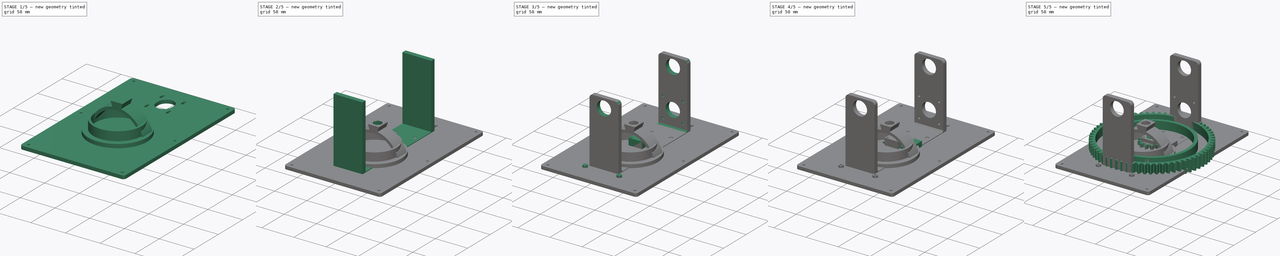
[diagram: build sequence overview — one tinted view per stage of 5, left to right]
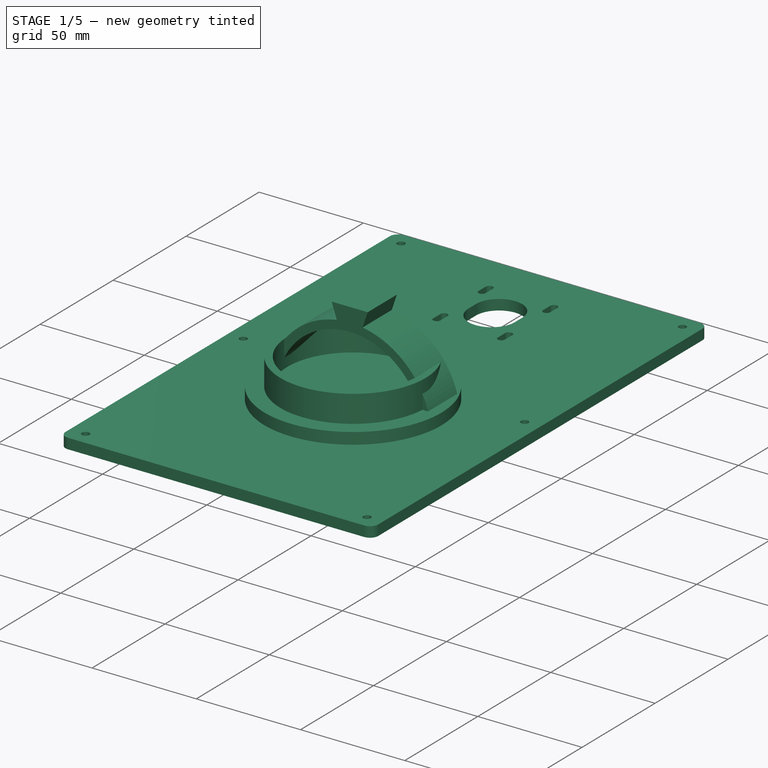
[diagram: stage 1 of 5 — iso view after this stage's code; geometry added in this stage tinted green]
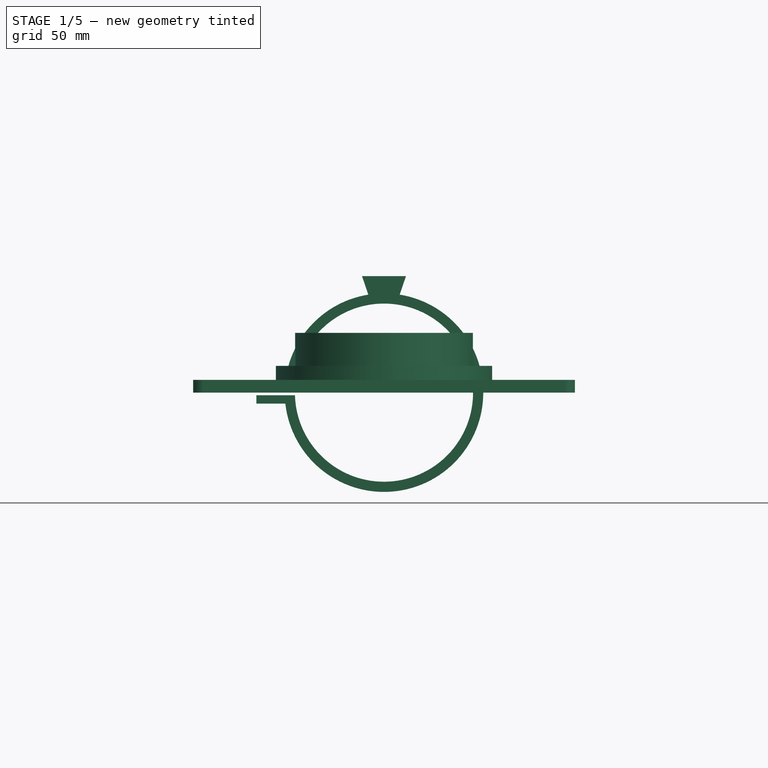
[diagram: stage 1 of 5 — front view after this stage's code; geometry added in this stage tinted green]
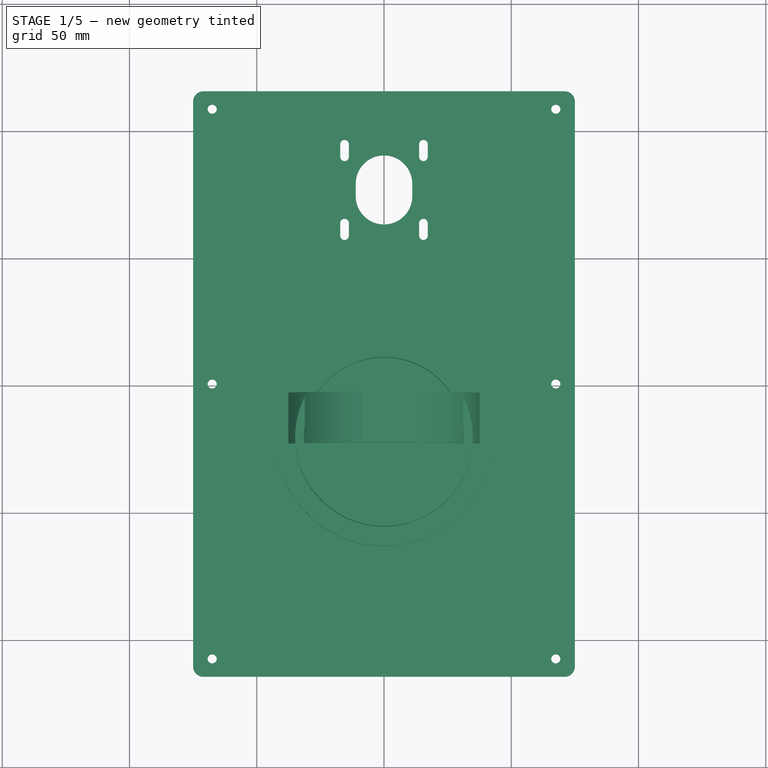
[diagram: stage 1 of 5 — top view after this stage's code; geometry added in this stage tinted green]
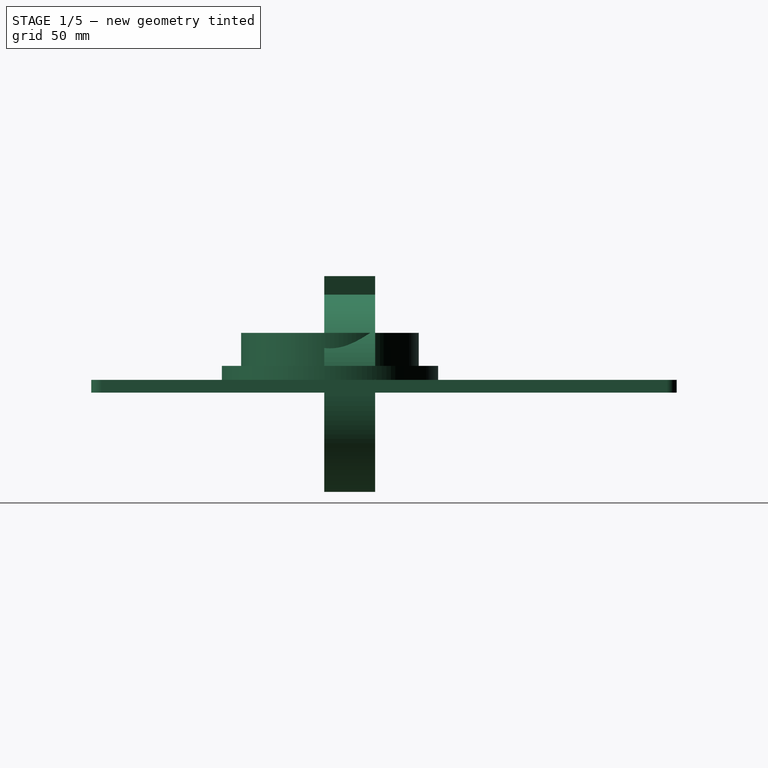
[diagram: stage 1 of 5 — right view after this stage's code; geometry added in this stage tinted green]
FCSTD DOCUMENT  (FreeCAD 0.19R21937 (Git))
Label: dslr_telescope_altaz
License: All rights reserved
LicenseURL: http://en.wikipedia.org/wiki/All_rights_reserved
objects: Sketcher::SketchObject×30, PartDesign::Pad×16, PartDesign::Pocket×16, PartDesign::Body×8, PartDesign::Fillet×3, Part::Part2DObjectPython×2, PartDesign::Plane×2, PartDesign::Chamfer×1
note: 114 computed .brp shape members not serialized (recipe doc carries the construction recipe); baked Part::Feature solids carry a one-line shape summary decoded from their .brp

FEATURE [PartDesign::Body] Body  label="Large azimuth gear"
  Group = -> [InvoluteGear,Pad,Sketch,Pocket,Sketch001,Pocket001,Sketch002,Pocket002]
  Origin = -> Origin
  Placement = pos=(0,-21,29) rot=(0,1,0;3.14159rad)
  Tip = -> Pocket002
FEATURE [Sketcher::SketchObject] Sketch003
  MapMode = 5
  expr: Constraints[84] = 31 / 2
  sketch-geometry (38):
    g0: LineSegment [constr] StartX=-67.5 StartY=108 StartZ=0 EndX=67.5 EndY=108 EndZ=0
    g1: LineSegment [constr] StartX=67.5 StartY=108 StartZ=0 EndX=67.5 EndY=-108 EndZ=0
    g2: LineSegment [constr] StartX=67.5 StartY=-108 StartZ=0 EndX=-67.5 EndY=-108 EndZ=0
    g3: LineSegment [constr] StartX=-67.5 StartY=-108 StartZ=0 EndX=-67.5 EndY=108 EndZ=0
    g4: Circle CenterX=-67.5 CenterY=108 CenterZ=0 NormalX=0 NormalY=0 NormalZ=1 AngleXU=0 Radius=1.8
    g5: Circle CenterX=67.5 CenterY=108 CenterZ=0 NormalX=0 NormalY=0 NormalZ=1 AngleXU=0 Radius=1.8
    g6: Circle CenterX=67.5 CenterY=-108 CenterZ=0 NormalX=0 NormalY=0 NormalZ=1 AngleXU=0 Radius=1.8
    g7: Circle CenterX=-67.5 CenterY=-108 CenterZ=0 NormalX=0 NormalY=0 NormalZ=1 AngleXU=0 Radius=1.8
    g8: LineSegment [constr] StartX=-15.5 StartY=94.273 StartZ=0 EndX=15.5 EndY=94.273 EndZ=0
    g9: LineSegment [constr] StartX=15.5 StartY=94.273 StartZ=0 EndX=15.5 EndY=63.273 EndZ=0
    g10: LineSegment [constr] StartX=15.5 StartY=63.273 StartZ=0 EndX=-15.5 EndY=63.273 EndZ=0
    g11: LineSegment [constr] StartX=-15.5 StartY=63.273 StartZ=0 EndX=-15.5 EndY=94.273 EndZ=0
    g12: LineSegment StartX=-75 StartY=115 StartZ=0 EndX=75 EndY=115 EndZ=0
    g13: LineSegment StartX=75 StartY=115 StartZ=0 EndX=75 EndY=-115 EndZ=0
    g14: LineSegment StartX=75 StartY=-115 StartZ=0 EndX=-75 EndY=-115 EndZ=0
    g15: LineSegment StartX=-75 StartY=-115 StartZ=0 EndX=-75 EndY=115 EndZ=0
    g16: ArcOfCircle CenterX=-15.5 CenterY=94.273 CenterZ=0 NormalX=0 NormalY=0 NormalZ=1 AngleXU=0 Radius=1.7 StartAngle=-9e-16 EndAngle=3.14159
    g17: ArcOfCircle CenterX=-15.5 CenterY=89.273 CenterZ=0 NormalX=0 NormalY=0 NormalZ=1 AngleXU=0 Radius=1.7 StartAngle=3.14159 EndAngle=6.28319
    g18: LineSegment StartX=-17.2 StartY=94.273 StartZ=0 EndX=-17.2 EndY=89.273 EndZ=0
    g19: LineSegment StartX=-13.8 StartY=94.273 StartZ=0 EndX=-13.8 EndY=89.273 EndZ=0
    g20: ArcOfCircle CenterX=15.5 CenterY=94.273 CenterZ=0 NormalX=0 NormalY=0 NormalZ=1 AngleXU=0 Radius=1.7 StartAngle=-9e-16 EndAngle=3.14159
    g21: ArcOfCircle CenterX=15.5 CenterY=89.273 CenterZ=0 NormalX=0 NormalY=0 NormalZ=1 AngleXU=0 Radius=1.7 StartAngle=3.14159 EndAngle=6.28319
    g22: LineSegment StartX=13.8 StartY=94.273 StartZ=0 EndX=13.8 EndY=89.273 EndZ=0
    g23: LineSegment StartX=17.2 StartY=94.273 StartZ=0 EndX=17.2 EndY=89.273 EndZ=0
    g24: ArcOfCircle CenterX=15.5 CenterY=63.273 CenterZ=0 NormalX=0 NormalY=0 NormalZ=1 AngleXU=0 Radius=1.7 StartAngle=2.2e-15 EndAngle=3.14159
    g25: ArcOfCircle CenterX=15.5 CenterY=58.273 CenterZ=0 NormalX=0 NormalY=0 NormalZ=1 AngleXU=0 Radius=1.7 StartAngle=3.14159 EndAngle=6.28319
    g26: LineSegment StartX=13.8 StartY=63.273 StartZ=0 EndX=13.8 EndY=58.273 EndZ=0
    g27: LineSegment StartX=17.2 StartY=63.273 StartZ=0 EndX=17.2 EndY=58.273 EndZ=0
    g28: ArcOfCircle CenterX=-15.5 CenterY=63.273 CenterZ=0 NormalX=0 NormalY=0 NormalZ=1 AngleXU=0 Radius=1.7 StartAngle=1.1e-15 EndAngle=3.14159
    g29: ArcOfCircle CenterX=-15.5 CenterY=58.273 CenterZ=0 NormalX=0 NormalY=0 NormalZ=1 AngleXU=0 Radius=1.7 StartAngle=3.14159 EndAngle=6.28319
    g30: LineSegment StartX=-17.2 StartY=63.273 StartZ=0 EndX=-17.2 EndY=58.273 EndZ=0
    g31: LineSegment StartX=-13.8 StartY=63.273 StartZ=0 EndX=-13.8 EndY=58.273 EndZ=0
    g32: ArcOfCircle CenterX=0 CenterY=78.773 CenterZ=0 NormalX=0 NormalY=0 NormalZ=1 AngleXU=0 Radius=11.1 StartAngle=4e-16 EndAngle=3.14159
    g33: ArcOfCircle CenterX=5e-16 CenterY=73.773 CenterZ=0 NormalX=0 NormalY=0 NormalZ=1 AngleXU=0 Radius=11.1 StartAngle=3.14159 EndAngle=6.28319
    g34: LineSegment StartX=-11.1 StartY=78.773 StartZ=0 EndX=-11.1 EndY=73.773 EndZ=0
    g35: LineSegment StartX=11.1 StartY=78.773 StartZ=0 EndX=11.1 EndY=73.773 EndZ=0
    g36: Circle CenterX=-67.5 CenterY=0 CenterZ=0 NormalX=0 NormalY=0 NormalZ=1 AngleXU=0 Radius=1.8
    g37: Circle CenterX=67.5 CenterY=0 CenterZ=0 NormalX=0 NormalY=0 NormalZ=1 AngleXU=0 Radius=1.8
  constraints (91):
    c: Coincident(g0,g1)
    c: Coincident(g1,g2)
    c: Coincident(g2,g3)
    c: Coincident(g3,g0)
    c: Horizontal(g0)
    c: Horizontal(g2)
    c: Vertical(g1)
    c: Vertical(g3)
    c: DistanceX(g0,g0) = 135
    c: DistanceY(g3,g3) = 216
    c: Coincident(g4,g0)
    c: Coincident(g5,g0)
    c: Coincident(g6,g1)
    c: Coincident(g7,g2)
    c: Radius(g4) = 1.8
    c: Equal(g4,g5)
    c: Equal(g4,g6)
    c: Equal(g4,g7)
    c: Coincident(g8,g9)
    c: Coincident(g9,g10)
    c: Coincident(g10,g11)
    c: Coincident(g11,g8)
    c: Horizontal(g10)
    c: Vertical(g9)
    c: Vertical(g11)
    c: Equal(g8,g9)
    c: DistanceX(g8,g8) = 31
    c: Symmetric(g0,g2,g-1)
    c: Coincident(g15,g14)
    c: Coincident(g14,g13)
    c: Coincident(g12,g15)
    c: Coincident(g13,g12)
    c: Equal(g15,g13)
    c: Equal(g12,g14)
    c: DistanceY(g15,g15) = 230
    c: DistanceX(g12,g12) = 150
    c: Symmetric(g12,g12,g-2)
    c: Symmetric(g14,g12,g-1)
    c: Tangent(g16,g19)
    c: Tangent(g16,g18)
    c: Tangent(g18,g17)
    c: Tangent(g19,g17)
    c: Vertical(g18)
    c: Equal(g16,g17)
    c: Tangent(g20,g23)
    c: Tangent(g20,g22)
    c: Tangent(g22,g21)
    c: Tangent(g23,g21)
    c: Vertical(g22)
    c: Equal(g20,g21)
    c: Tangent(g24,g27)
    c: Tangent(g24,g26)
    c: Tangent(g26,g25)
    c: Tangent(g27,g25)
    c: Vertical(g26)
    c: Equal(g24,g25)
    c: Tangent(g28,g31)
    c: Tangent(g28,g30)
    c: Tangent(g30,g29)
    c: Tangent(g31,g29)
    c: Vertical(g30)
    c: Equal(g28,g29)
    c: Equal(g28,g16)
    c: Equal(g16,g20)
    c: Equal(g20,g24)
    c: Radius(g16) = 1.7
    c: Equal(g18,g22)
    c: Equal(g22,g26)
    c: Equal(g26,g30)
    c: DistanceY(g18,g18) = 5
    c: Coincident(g8,g16)
    c: Coincident(g8,g20)
    c: Coincident(g28,g10)
    c: Coincident(g24,g9)
    c: Symmetric(g16,g20,g-2)
    c: Tangent(g32,g35)
    c: Tangent(g32,g34)
    c: Tangent(g34,g33)
    c: Tangent(g35,g33)
    c: Vertical(g34)
    c: Equal(g32,g33)
    c: Radius(g32) = 11.1
    c: Equal(g26,g35)
    c: PointOnObject(g32,g-2)
    c: DistanceY(g32,g16) = 15.5
    c: PointOnObject(g36,g3)
    c: PointOnObject(g37,g1)
    c: PointOnObject(g37,g-1)
    c: PointOnObject(g36,g-1)
    c: Equal(g36,g37)
    c: Equal(g37,g4)
FEATURE [PartDesign::Pad] Pad001
  AllowMultiFace = false
  Length = 5
  Length2 = 100
  Profile = -> Sketch003
  Type = 0
FEATURE [PartDesign::Body] Pocket043Body  label="altitude shaft mount"
  Group = -> [DatumPlane,Sketch048,Pad026,Sketch076,Pad027,Sketch075,Pocket041,Sketch077,Pocket042,Sketch078,Pocket043]
  Origin = -> Origin006
  Placement = pos=(0,-20,119) rot=(0,0,1;0rad)
  Tip = -> Pocket043
FEATURE [Sketcher::SketchObject] Sketch030
  MapMode = 5
  Placement = pos=(0,-13.5,-3e-15) rot=(1,0,0;1.5708rad)
  Support = -> [DatumPlane001]
  sketch-geometry (8):
    g0: ArcOfCircle CenterX=0 CenterY=0 CenterZ=0 NormalX=0 NormalY=0 NormalZ=1 AngleXU=0 Radius=35 StartAngle=3.17017 EndAngle=9.3962
    g1: LineSegment StartX=-50.1379 StartY=1 StartZ=0 EndX=-34.9857 EndY=1 EndZ=0
    g2: LineSegment StartX=-50.1379 StartY=1 StartZ=0 EndX=-50.1379 EndY=4.33261 EndZ=0
    g3: LineSegment StartX=-50.1379 StartY=4.33261 StartZ=0 EndX=-38.7586 EndY=4.33261 EndZ=0
    g4: ArcOfCircle CenterX=0 CenterY=0 CenterZ=0 NormalX=0 NormalY=0 NormalZ=1 AngleXU=0 Radius=39 StartAngle=3.25291 EndAngle=9.31346
    g5: LineSegment StartX=-38.7586 StartY=-4.33261 StartZ=0 EndX=-50.1379 EndY=-4.33261 EndZ=0
    g6: LineSegment StartX=-50.1379 StartY=-4.33261 StartZ=0 EndX=-50.1379 EndY=-1 EndZ=0
    g7: LineSegment StartX=-50.1379 StartY=-1 StartZ=0 EndX=-34.9857 EndY=-1 EndZ=0
  constraints (22):
    c: Coincident(g0,g-1)
    c: Radius(g0) = 35
    c: Horizontal(g1)
    c: Coincident(g0,g1)
    c: Coincident(g1,g2)
    c: Vertical(g2)
    c: Coincident(g2,g3)
    c: Horizontal(g3)
    c: Coincident(g4,g-1)
    c: Coincident(g4,g3)
    c: DistanceY(g-1,g1) = 1
    c: Radius(g4) = 39
    c: Coincident(g5,g4)
    c: Horizontal(g5)
    c: Coincident(g6,g5)
    c: Vertical(g6)
    c: Coincident(g7,g6)
    c: Coincident(g7,g0)
    c: Horizontal(g7)
    c: Equal(g6,g2)
    c: Equal(g7,g1)
    c: Equal(g5,g3)
FEATURE [PartDesign::Pad] Pad010
  AllowMultiFace = false
  Length = 20
  Length2 = 100
  Midplane = true
  Placement = pos=(0,-13.5,-3e-15) rot=(1,0,0;1.5708rad)
  Profile = -> Sketch030
  Type = 0
FEATURE [Sketcher::SketchObject] Sketch031
  MapMode = 5
  Placement = pos=(0,-13.5,4.33261) rot=(0,0,1;3.14159rad)
  Support = -> [Pad010]
  sketch-geometry (3):
    g0: LineSegment [constr] StartX=44.1714 StartY=4.44304 StartZ=0 EndX=44.1714 EndY=-4.44304 EndZ=0
    g1: Circle CenterX=44.1714 CenterY=-4.44304 CenterZ=0 NormalX=0 NormalY=0 NormalZ=1 AngleXU=0 Radius=1.7
    g2: Circle CenterX=44.1714 CenterY=4.44304 CenterZ=0 NormalX=0 NormalY=0 NormalZ=1 AngleXU=0 Radius=1.7
  constraints (5):
    c: Coincident(g1,g0)
    c: Radius(g2) = 1.7
    c: Equal(g2,g1)
    c: Coincident(g0,g2)
    c: Symmetric(g2,g1,g-1)
FEATURE [PartDesign::Pocket] Pocket019
  AllowMultiFace = false
  BaseFeature = -> Pad010
  Length = 10
  Length2 = 100
  Placement = pos=(0,-13.5,-3e-15) rot=(1,0,0;1.5708rad)
  Profile = -> Sketch031
  Type = 0
FEATURE [Sketcher::SketchObject] Sketch032
  MapMode = 5
  Placement = pos=(0,-3.5,-2.9e-15) rot=(-1,0,0;1.5708rad)
  Support = -> [Pocket019]
  sketch-geometry (4):
    g0: LineSegment StartX=-5.98499 StartY=-37.9395 StartZ=0 EndX=-8.63867 EndY=-45.7969 EndZ=0
    g1: LineSegment StartX=-8.63867 StartY=-45.7969 StartZ=0 EndX=8.63867 EndY=-45.7969 EndZ=0
    g2: LineSegment StartX=8.63867 StartY=-45.7969 StartZ=0 EndX=5.98499 EndY=-37.9395 EndZ=0
    g3: LineSegment StartX=5.98499 StartY=-37.9395 StartZ=0 EndX=-5.98499 EndY=-37.9395 EndZ=0
  constraints (6):
    c: Coincident(g0,g1)
    c: Coincident(g1,g2)
    c: Coincident(g2,g3)
    c: Coincident(g3,g0)
    c: Symmetric(g0,g2,g-2)
    c: Symmetric(g0,g1,g-2)
FEATURE [PartDesign::Pad] Pad011
  AllowMultiFace = false
  BaseFeature = -> Pocket019
  Length = 20
  Length2 = 100
  Placement = pos=(0,-13.5,-3e-15) rot=(1,0,0;1.5708rad)
  Profile = -> Sketch032
  Reversed = true
  Type = 0
FEATURE [PartDesign::Body] Pocket021Body  label="lens tripod mount"
  Group = -> [DatumPlane001,Sketch030,Pad010,Sketch031,Pocket019,Sketch032,Pad011,Sketch034,Pocket021,Sketch094,Pocket051]
  Origin = -> Origin002
  Placement = pos=(4,-20,171) rot=(1,0,0;3.14159rad)
  Tip = -> Pocket051
FEATURE [Sketcher::SketchObject] Sketch095
  ExternalGeometry = -> [Pad001]
  MapMode = 5
  Placement = pos=(0,0,5) rot=(0,0,1;0rad)
  Support = -> [Pad001]
  sketch-geometry (1):
    g0: Circle CenterX=0 CenterY=-21.227 CenterZ=0 NormalX=0 NormalY=0 NormalZ=1 AngleXU=0 Radius=42.5
  constraints (3):
    c: Radius(g0) = 42.5
    c: PointOnObject(g0,g-2)
    c: DistanceY(g0,g-4) = 95
FEATURE [PartDesign::Pad] Pad035
  BaseFeature = -> Pad001
  Length = 5.5
  Length2 = 100
  Profile = -> Sketch095
  Type = 0
FEATURE [Sketcher::SketchObject] Sketch096
  ExternalGeometry = -> [Pad035]
  MapMode = 5
  Placement = pos=(0,0,10.5) rot=(0,0,1;0rad)
  Support = -> [Pad035]
  sketch-geometry (2):
    g0: Circle CenterX=0 CenterY=-21.227 CenterZ=0 NormalX=0 NormalY=0 NormalZ=1 AngleXU=0 Radius=34.9
    g1: Circle CenterX=0 CenterY=-21.227 CenterZ=0 NormalX=0 NormalY=0 NormalZ=1 AngleXU=0 Radius=31.5
  constraints (4):
    c: Coincident(g0,g-3)
    c: Coincident(g1,g0)
    c: Radius(g0) = 34.9
    c: Radius(g1) = 31.5
FEATURE [PartDesign::Pad] Pad036
  BaseFeature = -> Pad035
  Length = 13
  Length2 = 100
  Profile = -> Sketch096
  Type = 0
FEATURE [PartDesign::Fillet] Fillet003
  Base = -> Pad036 [Edge1,Edge5,Edge8,Edge2]
  BaseFeature = -> Pad036
  Radius = 4
  SupportTransform = false
FEATURE [PartDesign::Body] Body001  label="Azimuth base plate"
  Group = -> [Pad001,Sketch003,Sketch095,Pad035,Sketch096,Pad036,Fillet003]
  Origin = -> Origin001
  Tip = -> Fillet003
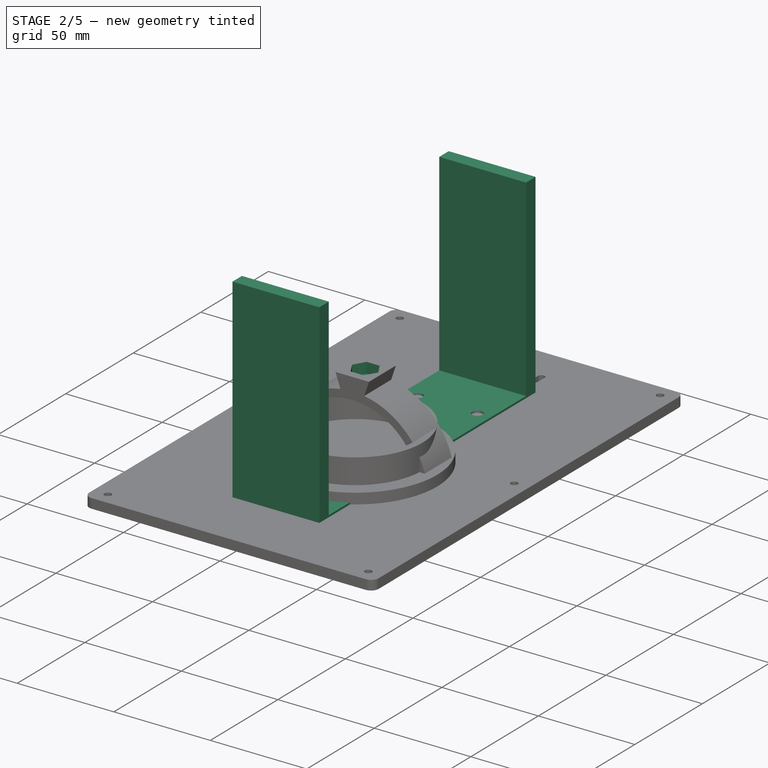
[diagram: stage 2 of 5 — iso view after this stage's code; geometry added in this stage tinted green]
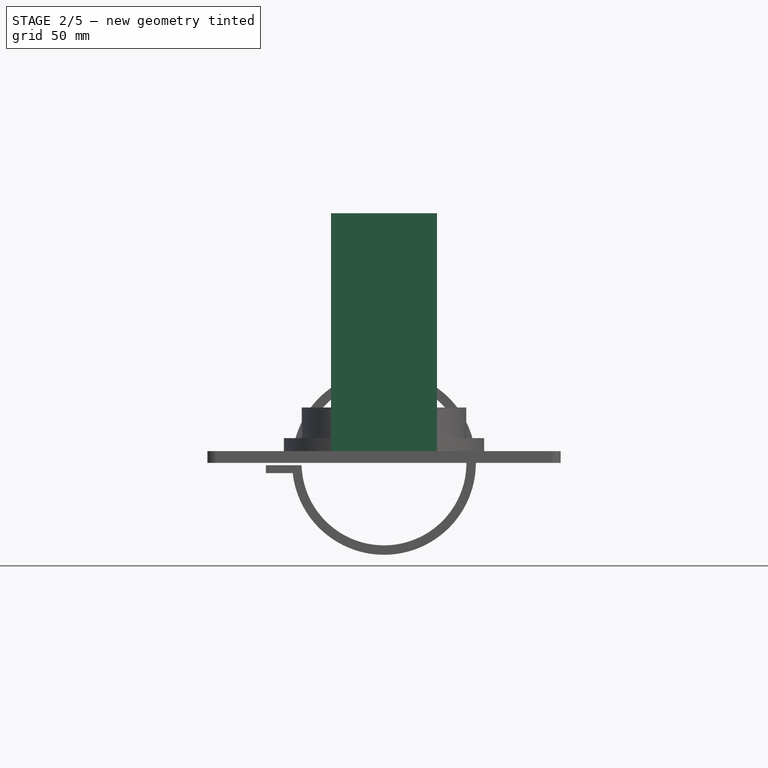
[diagram: stage 2 of 5 — front view after this stage's code; geometry added in this stage tinted green]
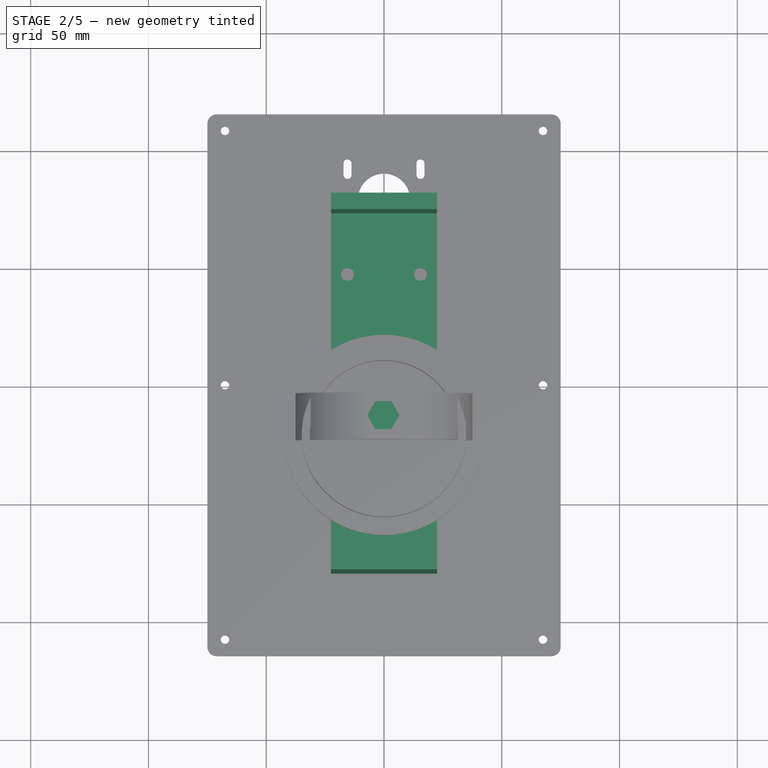
[diagram: stage 2 of 5 — top view after this stage's code; geometry added in this stage tinted green]
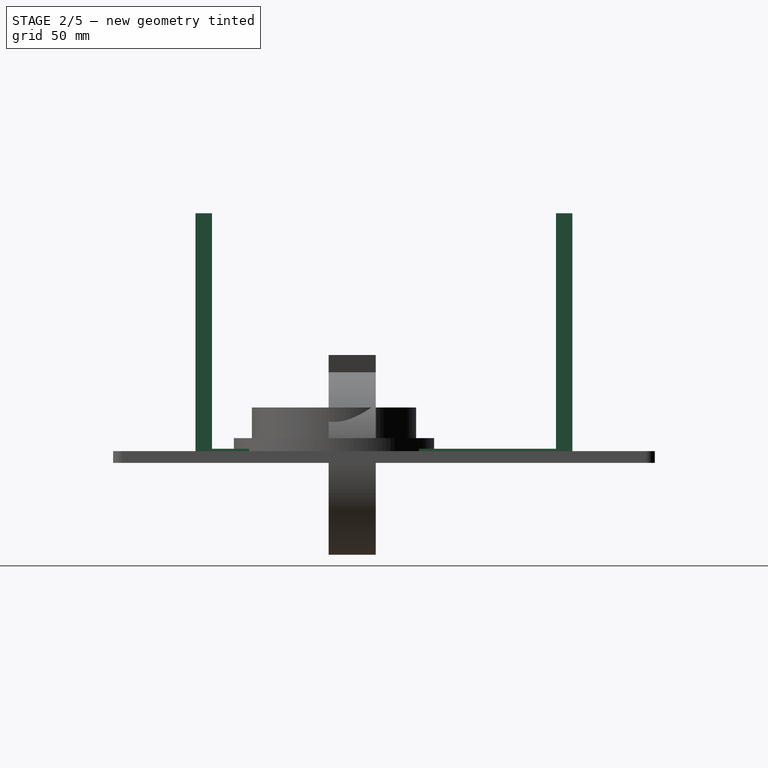
[diagram: stage 2 of 5 — right view after this stage's code; geometry added in this stage tinted green]
FEATURE [Sketcher::SketchObject] Sketch034
  MapMode = 5
  Placement = pos=(0,-13.5,45.7969) rot=(0,0,1;3.14159rad)
  Support = -> [Pad011]
  expr: Constraints[17] = 11.09 / 2 + 1.25
  sketch-geometry (7):
    g0: LineSegment StartX=3.70854 StartY=-5.88464 StartZ=0 EndX=7.10604 EndY=9e-16 EndZ=0
    g1: LineSegment StartX=7.10604 StartY=9e-16 StartZ=0 EndX=3.70854 EndY=5.88464 EndZ=0
    g2: LineSegment StartX=3.70854 StartY=5.88464 StartZ=0 EndX=-3.08646 EndY=5.88464 EndZ=0
    g3: LineSegment StartX=-3.08646 StartY=5.88464 StartZ=0 EndX=-6.48396 EndY=-9e-16 EndZ=0
    g4: LineSegment StartX=-6.48396 StartY=-9e-16 StartZ=0 EndX=-3.08646 EndY=-5.88464 EndZ=0
    g5: LineSegment StartX=-3.08646 StartY=-5.88464 StartZ=0 EndX=3.70854 EndY=-5.88464 EndZ=0
    g6: Circle [constr] CenterX=0.31104 CenterY=0 CenterZ=0 NormalX=0 NormalY=0 NormalZ=1 AngleXU=0 Radius=6.795
  constraints (16):
    c: Coincident(g0,g1)
    c: Coincident(g1,g2)
    c: Coincident(g2,g3)
    c: Coincident(g3,g4)
    c: Coincident(g4,g5)
    c: Coincident(g5,g0)
    c: Equal(g0, g1-g5) x5
    c: PointOnObject(g0,g6)
    c: PointOnObject(g1,g6)
    c: PointOnObject(g2,g6)
    c: PointOnObject(g3,g6)
    c: PointOnObject(g4,g6)
    c: PointOnObject(g5,g6)
    c: Radius(g6) = 6.795
    c: Horizontal(g2)
    c: PointOnObject(g6,g-1)
FEATURE [PartDesign::Pocket] Pocket021
  AllowMultiFace = false
  BaseFeature = -> Pad011
  Length = 5.6
  Length2 = 100
  Placement = pos=(0,-13.5,-3e-15) rot=(1,0,0;1.5708rad)
  Profile = -> Sketch034
  Type = 0
FEATURE [Sketcher::SketchObject] Sketch079
  MapMode = 5
  sketch-geometry (13):
    g0: LineSegment [constr] StartX=-12.5 StartY=-32.1677 StartZ=0 EndX=12.5 EndY=-32.1677 EndZ=0
    g1: Circle CenterX=-12.5 CenterY=-32.1677 CenterZ=0 NormalX=0 NormalY=0 NormalZ=1 AngleXU=0 Radius=1.7
    g2: Circle CenterX=12.5 CenterY=-32.1677 CenterZ=0 NormalX=0 NormalY=0 NormalZ=1 AngleXU=0 Radius=1.7
    g3: LineSegment StartX=16.1841 StartY=-32.1677 StartZ=0 EndX=16.1841 EndY=23.3496 EndZ=0
    g4: LineSegment StartX=6.4143 StartY=-17.5264 StartZ=0 EndX=-14.2763 EndY=-28.9506 EndZ=0
    g5: LineSegment StartX=-12.5 StartY=-35.8427 StartZ=0 EndX=12.5091 EndY=-35.8427 EndZ=0
    g6: ArcOfCircle CenterX=-12.5 CenterY=-32.1677 CenterZ=0 NormalX=0 NormalY=0 NormalZ=1 AngleXU=0 Radius=3.67496 StartAngle=2.07528 EndAngle=4.71239
    g7: ArcOfCircle CenterX=12.5091 CenterY=-32.1677 CenterZ=0 NormalX=0 NormalY=0 NormalZ=1 AngleXU=0 Radius=3.67496 StartAngle=4.71239 EndAngle=6.28319
    g8: LineSegment StartX=8.8159 StartY=-13.457 StartZ=0 EndX=8.8159 EndY=23.3496 EndZ=0
    g9: ArcOfCircle CenterX=4.16741 CenterY=-13.457 CenterZ=0 NormalX=0 NormalY=0 NormalZ=1 AngleXU=0 Radius=4.64849 StartAngle=5.21688 EndAngle=6.28319
    g10: LineSegment StartX=10.0716 StartY=24.6053 StartZ=0 EndX=14.9284 EndY=24.6053 EndZ=0
    g11: ArcOfCircle CenterX=10.0716 CenterY=23.3496 CenterZ=0 NormalX=0 NormalY=0 NormalZ=1 AngleXU=0 Radius=1.2557 StartAngle=1.5708 EndAngle=3.14159
    g12: ArcOfCircle CenterX=14.9284 CenterY=23.3496 CenterZ=0 NormalX=0 NormalY=0 NormalZ=1 AngleXU=0 Radius=1.2557 StartAngle=-1.021e-13 EndAngle=1.5708
  constraints (22):
    c: DistanceX(g0,g0) = 25
    c: Coincident(g1,g0)
    c: Coincident(g2,g0)
    c: Radius(g1) = 1.7
    c: Equal(g1,g2)
    c: Symmetric(g0,g0,g-2)
    c: Horizontal(g5)
    c: Tangent(g4,g6) = -1.5708
    c: Tangent(g5,g6) = -1.5708
    c: Tangent(g3,g7) = -1.5708
    c: Tangent(g5,g7) = -1.5708
    c: Equal(g7,g6)
    c: Coincident(g6,g0)
    c: Vertical(g8)
    c: Tangent(g4,g9) = 1.5708
    c: Tangent(g8,g9) = -1.5708
    c: Vertical(g3)
    c: Horizontal(g10)
    c: Tangent(g8,g11) = 1.5708
    c: Tangent(g10,g11) = 1.5708
    c: Tangent(g3,g12) = -1.5708
    c: Tangent(g10,g12) = 1.5708
FEATURE [PartDesign::Pad] Pad028
  AllowMultiFace = false
  Length = 5
  Length2 = 100
  Profile = -> Sketch079
  Type = 0
FEATURE [PartDesign::Body] Body004  label="NUC base plate"
  Group = -> [Pad029,Sketch080,Sketch083,Pad031,Sketch084,Pocket045,Fillet002]
  Origin = -> Origin008
  Placement = pos=(0,0,-50) rot=(0,0,1;0rad)
  Tip = -> Fillet002
FEATURE [Sketcher::SketchObject] Sketch085
  MapMode = 5
  Support = -> [XY_Plane009]
  sketch-geometry (14):
    g0: LineSegment StartX=-22.5 StartY=80 StartZ=0 EndX=22.5 EndY=80 EndZ=0
    g1: LineSegment StartX=22.5 StartY=80 StartZ=0 EndX=22.5 EndY=-80 EndZ=0
    g2: LineSegment StartX=22.5 StartY=-80 StartZ=0 EndX=-22.5 EndY=-80 EndZ=0
    g3: LineSegment StartX=-22.5 StartY=-80 StartZ=0 EndX=-22.5 EndY=80 EndZ=0
    g4: LineSegment [constr] StartX=-15.5 StartY=47 StartZ=0 EndX=15.5 EndY=47 EndZ=0
    g5: LineSegment [constr] StartX=15.5 StartY=47 StartZ=0 EndX=15.5 EndY=-47 EndZ=0
    g6: LineSegment [constr] StartX=15.5 StartY=-47 StartZ=0 EndX=-15.5 EndY=-47 EndZ=0
    g7: LineSegment [constr] StartX=-15.5 StartY=-47 StartZ=0 EndX=-15.5 EndY=47 EndZ=0
    g8: Circle CenterX=-15.5 CenterY=47 CenterZ=0 NormalX=0 NormalY=0 NormalZ=1 AngleXU=0 Radius=1.7
    g9: Circle CenterX=15.5 CenterY=47 CenterZ=0 NormalX=0 NormalY=0 NormalZ=1 AngleXU=0 Radius=1.7
    g10: Circle CenterX=15.5 CenterY=-47 CenterZ=0 NormalX=0 NormalY=0 NormalZ=1 AngleXU=0 Radius=1.7
    g11: Circle CenterX=-15.5 CenterY=-47 CenterZ=0 NormalX=0 NormalY=0 NormalZ=1 AngleXU=0 Radius=1.7
    g12: Circle CenterX=15.5 CenterY=0 CenterZ=0 NormalX=0 NormalY=0 NormalZ=1 AngleXU=0 Radius=1.7
    g13: Circle CenterX=-15.5 CenterY=0 CenterZ=0 NormalX=0 NormalY=0 NormalZ=1 AngleXU=0 Radius=1.7
  constraints (36):
    c: Coincident(g0,g1)
    c: Coincident(g1,g2)
    c: Coincident(g2,g3)
    c: Coincident(g3,g0)
    c: Horizontal(g0)
    c: Horizontal(g2)
    c: Vertical(g1)
    c: Vertical(g3)
    c: DistanceY(g1,g1) = 160
    c: DistanceX(g0,g0) = 45
    c: Symmetric(g0,g1,g-1)
    c: Coincident(g4,g5)
    c: Coincident(g5,g6)
    c: Coincident(g6,g7)
    c: Coincident(g7,g4)
    c: Horizontal(g4)
    c: Horizontal(g6)
    c: Vertical(g5)
    c: Vertical(g7)
    c: DistanceY(g7,g7) = 94
    c: DistanceX(g4,g4) = 31
    c: Symmetric(g4,g5,g-1)
    c: Coincident(g8,g4)
    c: Coincident(g9,g4)
    c: Coincident(g11,g6)
    c: PointOnObject(g12,g-1)
    c: PointOnObject(g13,g-1)
    c: PointOnObject(g13,g7)
    c: PointOnObject(g12,g5)
    c: Coincident(g10,g5)
    c: Radius(g8) = 1.7
    c: Equal(g8,g9)
    c: Equal(g8,g12)
    c: Equal(g8,g13)
    c: Equal(g8,g11)
    c: Equal(g8,g10)
FEATURE [PartDesign::Pad] Pad032
  Length = 6
  Length2 = 100
  Profile = -> Sketch085
  Type = 0
FEATURE [Sketcher::SketchObject] Sketch086
  ExternalGeometry = -> [Pad032]
  MapMode = 5
  Placement = pos=(0,0,6) rot=(0,0,1;0rad)
  Support = -> [Pad032]
  sketch-geometry (6):
    g0: Circle CenterX=-15.5 CenterY=47 CenterZ=0 NormalX=0 NormalY=0 NormalZ=1 AngleXU=0 Radius=2.7
    g1: Circle CenterX=15.5 CenterY=47 CenterZ=0 NormalX=0 NormalY=0 NormalZ=1 AngleXU=0 Radius=2.7
    g2: Circle CenterX=15.5 CenterY=0 CenterZ=0 NormalX=0 NormalY=0 NormalZ=1 AngleXU=0 Radius=2.7
    g3: Circle CenterX=-15.5 CenterY=0 CenterZ=0 NormalX=0 NormalY=0 NormalZ=1 AngleXU=0 Radius=2.7
    g4: Circle CenterX=-15.5 CenterY=-47 CenterZ=0 NormalX=0 NormalY=0 NormalZ=1 AngleXU=0 Radius=2.7
    g5: Circle CenterX=15.5 CenterY=-47 CenterZ=0 NormalX=0 NormalY=0 NormalZ=1 AngleXU=0 Radius=2.7
  constraints (12):
    c: Coincident(g0,g-3)
    c: Coincident(g1,g-4)
    c: Coincident(g2,g-5)
    c: Coincident(g3,g-6)
    c: Coincident(g4,g-7)
    c: Coincident(g5,g-8)
    c: Radius(g5) = 2.7
    c: Equal(g5,g4)
    c: Equal(g5,g3)
    c: Equal(g5,g2)
    c: Equal(g5,g1)
    c: Equal(g5,g0)
FEATURE [PartDesign::Pocket] Pocket046
  BaseFeature = -> Pad032
  Length = 3.25
  Length2 = 100
  Profile = -> Sketch086
  Type = 0
FEATURE [Sketcher::SketchObject] Sketch087
  ExternalGeometry = -> [Pocket046]
  MapMode = 5
  Placement = pos=(0,0,6) rot=(0,0,1;0rad)
  Support = -> [Pocket046]
  sketch-geometry (8):
    g0: LineSegment StartX=22.5 StartY=80 StartZ=0 EndX=-22.5 EndY=80 EndZ=0
    g1: LineSegment StartX=-22.5 StartY=80 StartZ=0 EndX=-22.5 EndY=73 EndZ=0
    g2: LineSegment StartX=-22.5 StartY=73 StartZ=0 EndX=22.5 EndY=73 EndZ=0
    g3: LineSegment StartX=22.5 StartY=73 StartZ=0 EndX=22.5 EndY=80 EndZ=0
    g4: LineSegment StartX=22.5 StartY=-80 StartZ=0 EndX=-22.5 EndY=-80 EndZ=0
    g5: LineSegment StartX=-22.5 StartY=-80 StartZ=0 EndX=-22.5 EndY=-73 EndZ=0
    g6: LineSegment StartX=-22.5 StartY=-73 StartZ=0 EndX=22.5 EndY=-73 EndZ=0
    g7: LineSegment StartX=22.5 StartY=-73 StartZ=0 EndX=22.5 EndY=-80 EndZ=0
  constraints (22):
    c: Coincident(g0,g1)
    c: Coincident(g1,g2)
    c: Coincident(g2,g3)
    c: Coincident(g3,g0)
    c: Horizontal(g0)
    c: Horizontal(g2)
    c: Vertical(g1)
    c: Vertical(g3)
    c: Coincident(g0,g-4)
    c: PointOnObject(g1,g-3)
    c: Coincident(g4,g5)
    c: Coincident(g5,g6)
    c: Coincident(g6,g7)
    c: Coincident(g7,g4)
    c: Horizontal(g4)
    c: Horizontal(g6)
    c: Vertical(g5)
    c: Vertical(g7)
    c: Coincident(g4,g-4)
    c: PointOnObject(g5,g-3)
    c: Equal(g3,g7)
    c: DistanceY(g3,g3) = 7
FEATURE [PartDesign::Pad] Pad033
  BaseFeature = -> Pocket046
  Length = 100
  Length2 = 100
  Profile = -> Sketch087
  Type = 0
FEATURE [PartDesign::Body] Body005  label="altitude stage"
  Group = -> [Sketch085,Pad032,Sketch086,Pocket046,Sketch087,Pad033,Sketch088,Pocket047,Sketch089,Pocket048,Sketch090,Pad034,Sketch091,Pocket049,Fillet,Chamfer]
  Origin = -> Origin009
  Placement = pos=(0,-21,29) rot=(0,0,1;0rad)
  Tip = -> Chamfer
FEATURE [Sketcher::SketchObject] Sketch082
  ExternalGeometry = -> [Pad028]
  MapMode = 5
  Placement = pos=(0,0,0) rot=(1,0,0;3.14159rad)
  Support = -> [Pad028]
  sketch-geometry (3):
    g0: LineSegment [constr] StartX=12.5 StartY=-5.83225 StartZ=0 EndX=12.5 EndY=-21.3323 EndZ=0
    g1: Circle CenterX=12.5 CenterY=-5.83225 CenterZ=0 NormalX=0 NormalY=0 NormalZ=1 AngleXU=0 Radius=1.4
    g2: Circle CenterX=12.5 CenterY=-21.3323 CenterZ=0 NormalX=0 NormalY=0 NormalZ=1 AngleXU=0 Radius=1.4
  constraints (7):
    c: Vertical(g0)
    c: Coincident(g1,g0)
    c: Coincident(g2,g0)
    c: DistanceY(g2,g1) = 15.5
    c: Radius(g2) = 1.4
    c: Equal(g2,g1)
    c: DistanceY(g1,g-3) = 38
FEATURE [PartDesign::Pocket] Pocket050
  BaseFeature = -> Pad028
  Length = 5
  Length2 = 100
  Profile = -> Sketch082
  Type = 0
FEATURE [PartDesign::Body] Body003  label="endstop mount"
  Group = -> [Pad028,Sketch079,Sketch082,Pocket050]
  Origin = -> Origin007
  Placement = pos=(0,110,31) rot=(1,0,0;1.5708rad)
  Tip = -> Pocket050
FEATURE [Sketcher::SketchObject] Sketch094
  ExternalGeometry = -> [Pocket019]
  MapMode = 5
  Placement = pos=(0,-13.5,4.33261) rot=(0,0,1;3.14159rad)
  Support = -> [Pocket019]
  expr: Constraints[39] = 5.4 / 2 + 0.3
  sketch-geometry (14):
    g0: LineSegment StartX=45.6714 StartY=1.84497 StartZ=0 EndX=47.1714 EndY=4.44304 EndZ=0
    g1: LineSegment StartX=47.1714 StartY=4.44304 StartZ=0 EndX=45.6714 EndY=7.04112 EndZ=0
    g2: LineSegment StartX=45.6714 StartY=7.04112 StartZ=0 EndX=42.6714 EndY=7.04112 EndZ=0
    g3: LineSegment StartX=42.6714 StartY=7.04112 StartZ=0 EndX=41.1714 EndY=4.44304 EndZ=0
    g4: LineSegment StartX=41.1714 StartY=4.44304 StartZ=0 EndX=42.6714 EndY=1.84497 EndZ=0
    g5: LineSegment StartX=42.6714 StartY=1.84497 StartZ=0 EndX=45.6714 EndY=1.84497 EndZ=0
    g6: Circle [constr] CenterX=44.1714 CenterY=4.44304 CenterZ=0 NormalX=0 NormalY=0 NormalZ=1 AngleXU=0 Radius=3
    g7: LineSegment StartX=45.6714 StartY=-7.04112 StartZ=0 EndX=47.1714 EndY=-4.44304 EndZ=0
    g8: LineSegment StartX=47.1714 StartY=-4.44304 StartZ=0 EndX=45.6714 EndY=-1.84497 EndZ=0
    g9: LineSegment StartX=45.6714 StartY=-1.84497 StartZ=0 EndX=42.6714 EndY=-1.84497 EndZ=0
    g10: LineSegment StartX=42.6714 StartY=-1.84497 StartZ=0 EndX=41.1714 EndY=-4.44304 EndZ=0
    g11: LineSegment StartX=41.1714 StartY=-4.44304 StartZ=0 EndX=42.6714 EndY=-7.04112 EndZ=0
    g12: LineSegment StartX=42.6714 StartY=-7.04112 StartZ=0 EndX=45.6714 EndY=-7.04112 EndZ=0
    g13: Circle [constr] CenterX=44.1714 CenterY=-4.44304 CenterZ=0 NormalX=0 NormalY=0 NormalZ=1 AngleXU=0 Radius=3
  constraints (32):
    c: Coincident(g0,g1)
    c: Coincident(g1,g2)
    c: Coincident(g2,g3)
    c: Coincident(g3,g4)
    c: Coincident(g4,g5)
    c: Coincident(g5,g0)
    c: Equal(g0, g1-g5) x5
    c: PointOnObject(g0,g6)
    c: PointOnObject(g1,g6)
    c: PointOnObject(g2,g6)
    c: PointOnObject(g3,g6)
    c: PointOnObject(g4,g6)
    c: PointOnObject(g5,g6)
    c: Coincident(g6,g-3)
    c: Coincident(g7,g8)
    c: Coincident(g8,g9)
    c: Coincident(g9,g10)
    c: Coincident(g10,g11)
    c: Coincident(g11,g12)
    c: Coincident(g12,g7)
    c: Equal(g7, g8-g12) x5
    c: PointOnObject(g7,g13)
    c: PointOnObject(g8,g13)
    c: PointOnObject(g9,g13)
    c: PointOnObject(g10,g13)
    c: PointOnObject(g11,g13)
    c: PointOnObject(g12,g13)
    c: Coincident(g13,g-4)
    c: Horizontal(g5)
    c: Horizontal(g12)
    c: Equal(g13,g6)
    c: Radius(g13) = 3
FEATURE [PartDesign::Pocket] Pocket051
  BaseFeature = -> Pocket021
  Length = 2.4
  Length2 = 100
  Placement = pos=(0,-13.5,-3e-15) rot=(1,0,0;1.5708rad)
  Profile = -> Sketch094
  Type = 0
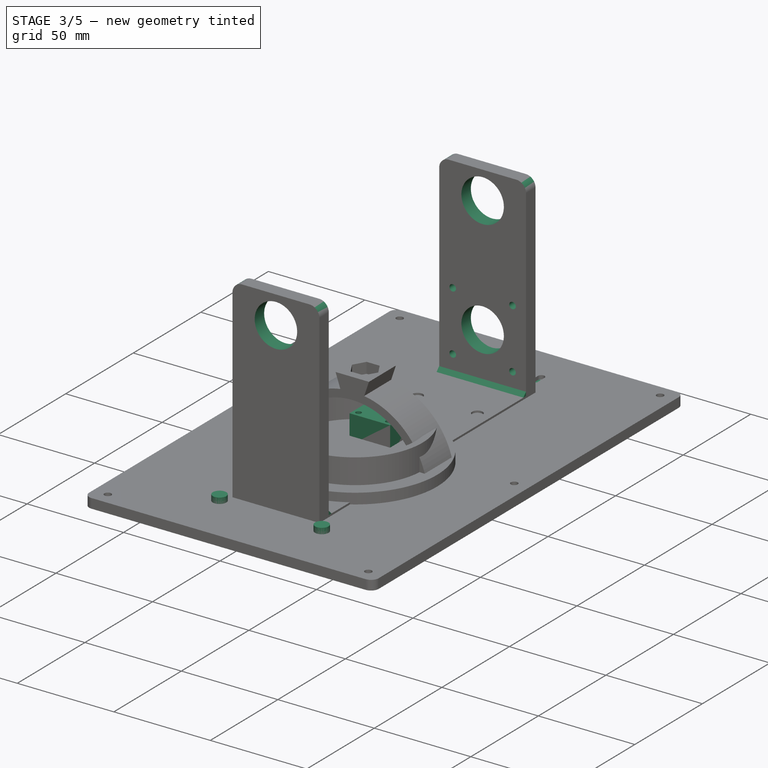
[diagram: stage 3 of 5 — iso view after this stage's code; geometry added in this stage tinted green]
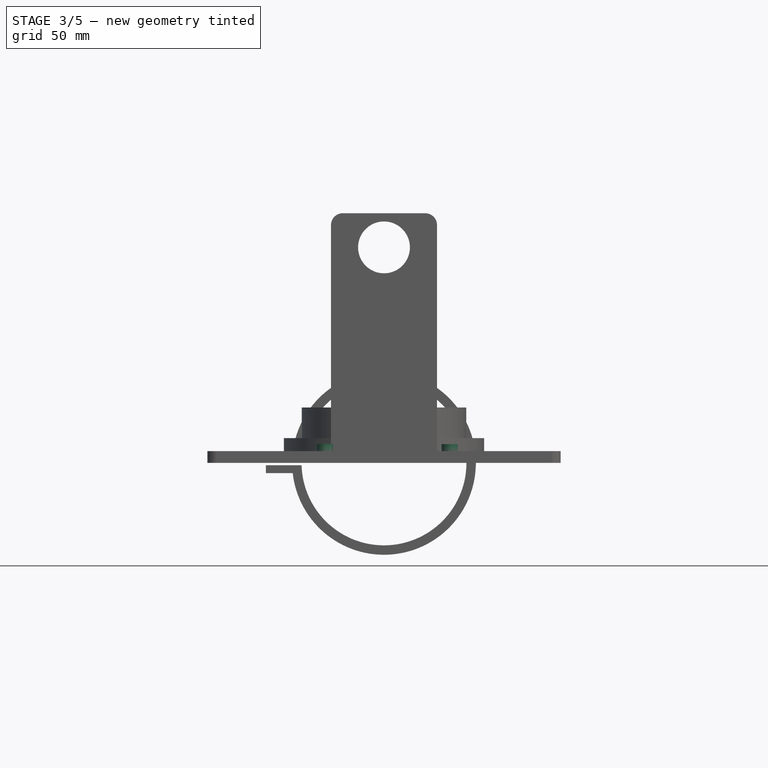
[diagram: stage 3 of 5 — front view after this stage's code; geometry added in this stage tinted green]
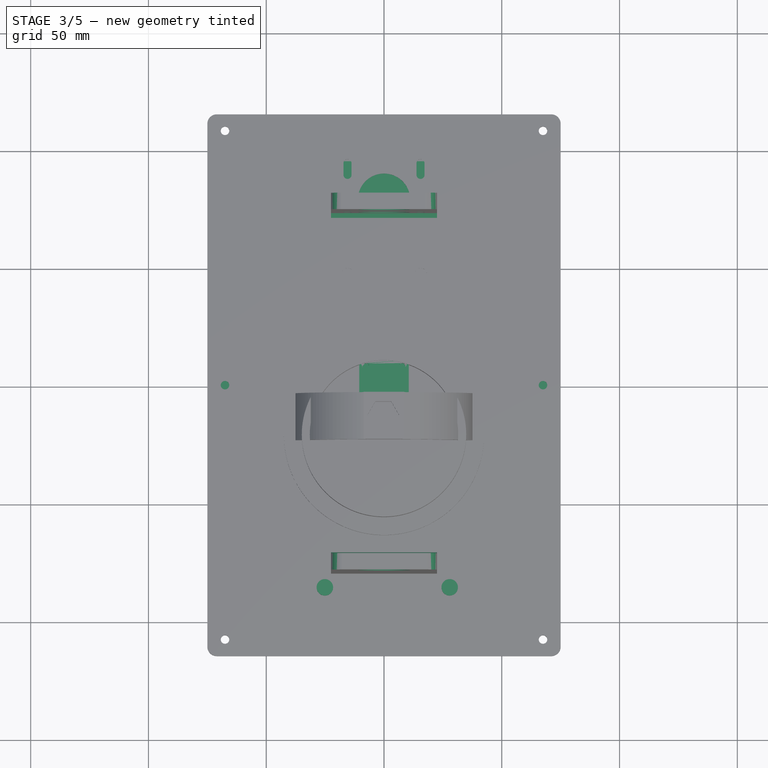
[diagram: stage 3 of 5 — top view after this stage's code; geometry added in this stage tinted green]
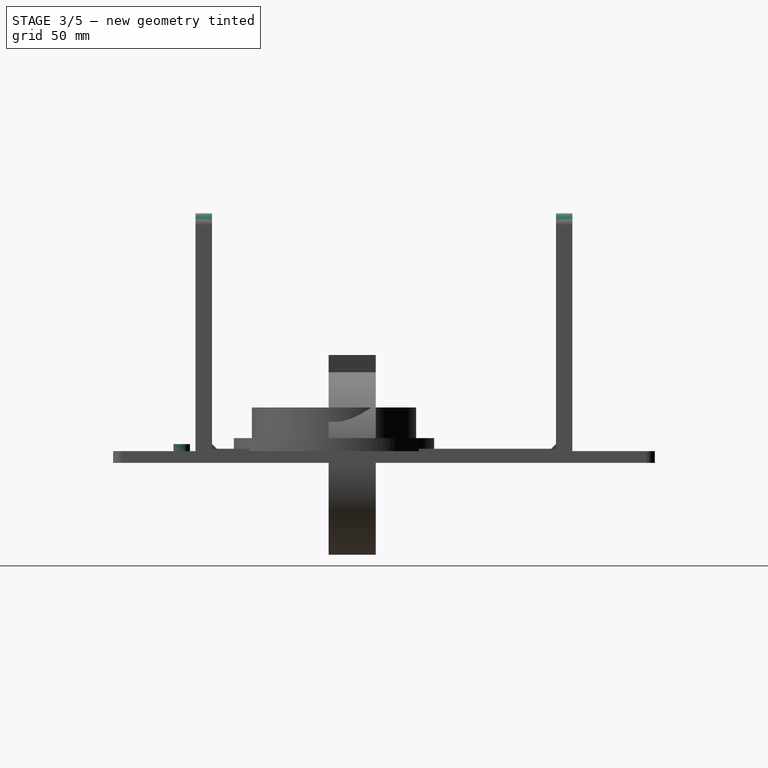
[diagram: stage 3 of 5 — right view after this stage's code; geometry added in this stage tinted green]
FEATURE [Sketcher::SketchObject] Sketch080
  MapMode = 5
  expr: Constraints[14] = 3.4 / 2
  sketch-geometry (20):
    g0: LineSegment [constr] StartX=-67.5 StartY=87.5 StartZ=0 EndX=67.5 EndY=87.5 EndZ=0
    g1: LineSegment [constr] StartX=67.5 StartY=87.5 StartZ=0 EndX=67.5 EndY=-87.5 EndZ=0
    g2: LineSegment [constr] StartX=67.5 StartY=-87.5 StartZ=0 EndX=-67.5 EndY=-87.5 EndZ=0
    g3: LineSegment [constr] StartX=-67.5 StartY=-87.5 StartZ=0 EndX=-67.5 EndY=87.5 EndZ=0
    g4: Circle CenterX=-67.5 CenterY=87.5 CenterZ=0 NormalX=0 NormalY=0 NormalZ=1 AngleXU=0 Radius=1.7
    g5: Circle CenterX=67.5 CenterY=87.5 CenterZ=0 NormalX=0 NormalY=0 NormalZ=1 AngleXU=0 Radius=1.7
    g6: Circle CenterX=67.5 CenterY=-87.5 CenterZ=0 NormalX=0 NormalY=0 NormalZ=1 AngleXU=0 Radius=1.7
    g7: Circle CenterX=-67.5 CenterY=-87.5 CenterZ=0 NormalX=0 NormalY=0 NormalZ=1 AngleXU=0 Radius=1.7
    g8: LineSegment StartX=-72.5 StartY=100 StartZ=0 EndX=72.5 EndY=100 EndZ=0
    g9: LineSegment StartX=72.5 StartY=100 StartZ=0 EndX=72.5 EndY=-100 EndZ=0
    g10: LineSegment StartX=72.5 StartY=-100 StartZ=0 EndX=-72.5 EndY=-100 EndZ=0
    g11: LineSegment StartX=-72.5 StartY=-100 StartZ=0 EndX=-72.5 EndY=100 EndZ=0
    g12: LineSegment [constr] StartX=-50 StartY=95.8995 StartZ=0 EndX=50 EndY=95.8995 EndZ=0
    g13: LineSegment [constr] StartX=50 StartY=95.8995 StartZ=0 EndX=50 EndY=-4.10054 EndZ=0
    g14: LineSegment [constr] StartX=50 StartY=-4.10054 StartZ=0 EndX=-50 EndY=-4.10054 EndZ=0
    g15: LineSegment [constr] StartX=-50 StartY=-4.10054 StartZ=0 EndX=-50 EndY=95.8995 EndZ=0
    g16: Circle CenterX=-50 CenterY=95.8995 CenterZ=0 NormalX=0 NormalY=0 NormalZ=1 AngleXU=0 Radius=1.7
    g17: Circle CenterX=50 CenterY=95.8995 CenterZ=0 NormalX=0 NormalY=0 NormalZ=1 AngleXU=0 Radius=1.7
    g18: Circle CenterX=50 CenterY=-4.10054 CenterZ=0 NormalX=0 NormalY=0 NormalZ=1 AngleXU=0 Radius=1.7
    g19: Circle CenterX=-50 CenterY=-4.10054 CenterZ=0 NormalX=0 NormalY=0 NormalZ=1 AngleXU=0 Radius=1.7
  constraints (48):
    c: Coincident(g0,g1)
    c: Coincident(g1,g2)
    c: Coincident(g2,g3)
    c: Coincident(g3,g0)
    c: Horizontal(g0)
    c: Horizontal(g2)
    c: Vertical(g1)
    c: Vertical(g3)
    c: DistanceX(g0,g0) = 135
    c: DistanceY(g3,g3) = 175
    c: Coincident(g4,g0)
    c: Coincident(g5,g0)
    c: Coincident(g6,g1)
    c: Coincident(g7,g2)
    c: Radius(g4) = 1.7
    c: Equal(g4,g5)
    c: Equal(g4,g6)
    c: Equal(g4,g7)
    c: Horizontal(g8)
    c: Horizontal(g10)
    c: Vertical(g9)
    c: Vertical(g11)
    c: Symmetric(g0,g2,g-1)
    c: Coincident(g11,g10)
    c: Coincident(g10,g9)
    c: Coincident(g11,g8)
    c: Coincident(g9,g8)
    c: DistanceX(g8,g8) = 145
    c: Symmetric(g8,g9,g-1)
    c: DistanceY(g11,g11) = 200
    c: Coincident(g12,g13)
    c: Coincident(g13,g14)
    c: Coincident(g14,g15)
    c: Coincident(g15,g12)
    c: Horizontal(g14)
    c: Vertical(g13)
    c: Vertical(g15)
    c: Symmetric(g12,g12,g-2)
    c: Equal(g12,g15)
    c: Coincident(g16,g12)
    c: Coincident(g17,g12)
    c: Coincident(g18,g13)
    c: Coincident(g19,g14)
    c: Radius(g16) = 1.7
    c: Equal(g16,g17)
    c: Equal(g16,g18)
    c: Equal(g16,g19)
    c: DistanceX(g12,g12) = 100
FEATURE [PartDesign::Pad] Pad029
  AllowMultiFace = false
  Length = 3
  Length2 = 100
  Profile = -> Sketch080
  Type = 0
FEATURE [Sketcher::SketchObject] Sketch083
  MapMode = 5
  Placement = pos=(0,0,3) rot=(0,0,1;0rad)
  Support = -> [Pad029]
  sketch-geometry (8):
    g0: LineSegment [constr] StartX=-25.1108 StartY=-22.8789 StartZ=0 EndX=27.8892 EndY=-22.8789 EndZ=0
    g1: LineSegment [constr] StartX=27.8892 StartY=-22.8789 StartZ=0 EndX=27.8892 EndY=-85.8789 EndZ=0
    g2: LineSegment [constr] StartX=27.8892 StartY=-85.8789 StartZ=0 EndX=-25.1108 EndY=-85.8789 EndZ=0
    g3: LineSegment [constr] StartX=-25.1108 StartY=-85.8789 StartZ=0 EndX=-25.1108 EndY=-22.8789 EndZ=0
    g4: Circle CenterX=-25.1108 CenterY=-22.8789 CenterZ=0 NormalX=0 NormalY=0 NormalZ=1 AngleXU=0 Radius=3.5
    g5: Circle CenterX=27.8892 CenterY=-22.8789 CenterZ=0 NormalX=0 NormalY=0 NormalZ=1 AngleXU=0 Radius=3.5
    g6: Circle CenterX=-25.1108 CenterY=-85.8789 CenterZ=0 NormalX=0 NormalY=0 NormalZ=1 AngleXU=0 Radius=3.5
    g7: Circle CenterX=27.8892 CenterY=-85.8789 CenterZ=0 NormalX=0 NormalY=0 NormalZ=1 AngleXU=0 Radius=3.5
  constraints (18):
    c: Coincident(g0,g1)
    c: Coincident(g1,g2)
    c: Coincident(g2,g3)
    c: Coincident(g3,g0)
    c: Horizontal(g0)
    c: Horizontal(g2)
    c: Vertical(g1)
    c: Vertical(g3)
    c: DistanceY(g3,g3) = 63
    c: DistanceX(g0,g0) = 53
    c: Coincident(g4,g0)
    c: Coincident(g5,g0)
    c: Coincident(g6,g2)
    c: Coincident(g7,g1)
    c: Radius(g4) = 3.5
    c: Equal(g4,g5)
    c: Equal(g4,g7)
    c: Equal(g4,g6)
FEATURE [PartDesign::Pad] Pad031
  BaseFeature = -> Pad029
  Length = 5
  Length2 = 100
  Profile = -> Sketch083
  Type = 0
FEATURE [Sketcher::SketchObject] Sketch088
  ExternalGeometry = -> [Pad033]
  MapMode = 5
  Placement = pos=(0,80,0) rot=(0,0.707107,0.707107;3.14159rad)
  Support = -> [Pad033]
  sketch-geometry (10):
    g0: Circle CenterX=0 CenterY=91.5 CenterZ=0 NormalX=0 NormalY=0 NormalZ=1 AngleXU=0 Radius=11
    g1: Circle CenterX=0 CenterY=31 CenterZ=0 NormalX=0 NormalY=0 NormalZ=1 AngleXU=0 Radius=11
    g2: LineSegment [constr] StartX=-15.5 StartY=46.5 StartZ=0 EndX=15.5 EndY=46.5 EndZ=0
    g3: LineSegment [constr] StartX=15.5 StartY=46.5 StartZ=0 EndX=15.5 EndY=15.5 EndZ=0
    g4: LineSegment [constr] StartX=15.5 StartY=15.5 StartZ=0 EndX=-15.5 EndY=15.5 EndZ=0
    g5: LineSegment [constr] StartX=-15.5 StartY=15.5 StartZ=0 EndX=-15.5 EndY=46.5 EndZ=0
    g6: Circle CenterX=-15.5 CenterY=46.5 CenterZ=0 NormalX=0 NormalY=0 NormalZ=1 AngleXU=0 Radius=1.7
    g7: Circle CenterX=15.5 CenterY=46.5 CenterZ=0 NormalX=0 NormalY=0 NormalZ=1 AngleXU=0 Radius=1.7
    g8: Circle CenterX=15.5 CenterY=15.5 CenterZ=0 NormalX=0 NormalY=0 NormalZ=1 AngleXU=0 Radius=1.7
    g9: Circle CenterX=-15.5 CenterY=15.5 CenterZ=0 NormalX=0 NormalY=0 NormalZ=1 AngleXU=0 Radius=1.7
  constraints (24):
    c: PointOnObject(g1,g-2)
    c: Radius(g0) = 11
    c: Equal(g0,g1)
    c: PointOnObject(g0,g-2)
    c: DistanceY(g1,g0) = 60.5
    c: DistanceY(g-3,g1) = 25
    c: Coincident(g2,g3)
    c: Coincident(g3,g4)
    c: Coincident(g4,g5)
    c: Coincident(g5,g2)
    c: Horizontal(g4)
    c: Vertical(g5)
    c: Symmetric(g2,g2,g-2)
    c: Equal(g3,g2)
    c: DistanceY(g5,g5) = 31
    c: Symmetric(g2,g3,g1)
    c: Coincident(g6,g2)
    c: Coincident(g7,g2)
    c: Coincident(g8,g3)
    c: Coincident(g9,g4)
    c: Radius(g6) = 1.7
    c: Equal(g6,g7)
    c: Equal(g6,g8)
    c: Equal(g6,g9)
FEATURE [PartDesign::Pocket] Pocket047
  BaseFeature = -> Pad033
  Length = 7
  Length2 = 100
  Profile = -> Sketch088
  Type = 0
FEATURE [Sketcher::SketchObject] Sketch089
  ExternalGeometry = -> [Pocket047]
  MapMode = 5
  Placement = pos=(0,-80,0) rot=(1,0,0;1.5708rad)
  Support = -> [Pocket047]
  sketch-geometry (1):
    g0: Circle CenterX=0 CenterY=91.5 CenterZ=0 NormalX=0 NormalY=0 NormalZ=1 AngleXU=0 Radius=11
  constraints (3):
    c: PointOnObject(g0,g-2)
    c: Radius(g0) = 11
    c: DistanceY(g-3,g0) = 85.5
FEATURE [PartDesign::Pocket] Pocket048
  BaseFeature = -> Pocket047
  Length = 7
  Length2 = 100
  Profile = -> Sketch089
  Type = 0
FEATURE [Sketcher::SketchObject] Sketch090
  MapMode = 5
  Placement = pos=(0,0,6) rot=(0,0,1;0rad)
  Support = -> [Pocket048]
  sketch-geometry (4):
    g0: LineSegment StartX=-10.5 StartY=10.5 StartZ=0 EndX=10.5 EndY=10.5 EndZ=0
    g1: LineSegment StartX=10.5 StartY=10.5 StartZ=0 EndX=10.5 EndY=-10.5 EndZ=0
    g2: LineSegment StartX=10.5 StartY=-10.5 StartZ=0 EndX=-10.5 EndY=-10.5 EndZ=0
    g3: LineSegment StartX=-10.5 StartY=-10.5 StartZ=0 EndX=-10.5 EndY=10.5 EndZ=0
  constraints (11):
    c: Coincident(g0,g1)
    c: Coincident(g1,g2)
    c: Coincident(g2,g3)
    c: Coincident(g3,g0)
    c: Horizontal(g0)
    c: Horizontal(g2)
    c: Vertical(g1)
    c: Vertical(g3)
    c: Symmetric(g0,g1,g-1)
    c: Equal(g0,g3)
    c: DistanceX(g0,g0) = 21
FEATURE [PartDesign::Pad] Pad034
  BaseFeature = -> Pocket048
  Length = 15
  Length2 = 100
  Profile = -> Sketch090
  Type = 0
FEATURE [Sketcher::SketchObject] Sketch091
  MapMode = 5
  Placement = pos=(0,0,21) rot=(0,0,1;0rad)
  Support = -> [Pad034]
  sketch-geometry (8):
    g0: LineSegment [constr] StartX=-7.75 StartY=7.75 StartZ=0 EndX=7.75 EndY=7.75 EndZ=0
    g1: LineSegment [constr] StartX=7.75 StartY=7.75 StartZ=0 EndX=7.75 EndY=-7.75 EndZ=0
    g2: LineSegment [constr] StartX=7.75 StartY=-7.75 StartZ=0 EndX=-7.75 EndY=-7.75 EndZ=0
    g3: LineSegment [constr] StartX=-7.75 StartY=-7.75 StartZ=0 EndX=-7.75 EndY=7.75 EndZ=0
    g4: Circle CenterX=-7.75 CenterY=7.75 CenterZ=0 NormalX=0 NormalY=0 NormalZ=1 AngleXU=0 Radius=1.4
    g5: Circle CenterX=7.75 CenterY=7.75 CenterZ=0 NormalX=0 NormalY=0 NormalZ=1 AngleXU=0 Radius=1.4
    g6: Circle CenterX=7.75 CenterY=-7.75 CenterZ=0 NormalX=0 NormalY=0 NormalZ=1 AngleXU=0 Radius=1.4
    g7: Circle CenterX=-7.75 CenterY=-7.75 CenterZ=0 NormalX=0 NormalY=0 NormalZ=1 AngleXU=0 Radius=1.4
  constraints (19):
    c: Coincident(g0,g1)
    c: Coincident(g1,g2)
    c: Coincident(g2,g3)
    c: Coincident(g3,g0)
    c: Horizontal(g0)
    c: Horizontal(g2)
    c: Vertical(g1)
    c: Vertical(g3)
    c: Equal(g0,g3)
    c: DistanceX(g0,g0) = 15.5
    c: Symmetric(g0,g1,g-1)
    c: Coincident(g4,g0)
    c: Coincident(g5,g0)
    c: Coincident(g6,g1)
    c: Coincident(g7,g2)
    c: Radius(g4) = 1.4
    c: Equal(g4,g5)
    c: Equal(g4,g6)
    c: Equal(g4,g7)
FEATURE [PartDesign::Pocket] Pocket049
  BaseFeature = -> Pad034
  Length = 6
  Length2 = 100
  Profile = -> Sketch091
  Type = 0
FEATURE [PartDesign::Fillet] Fillet
  Base = -> Pocket049 [Edge48,Edge50,Edge34,Edge53]
  BaseFeature = -> Pocket049
  Radius = 5
  SupportTransform = false
FEATURE [PartDesign::Chamfer] Chamfer
  Angle = 45
  Base = -> Fillet [Edge39,Edge55]
  BaseFeature = -> Fillet
  ChamferType = 0
  FlipDirection = false
  Size = 2
  Size2 = 1
  SupportTransform = false
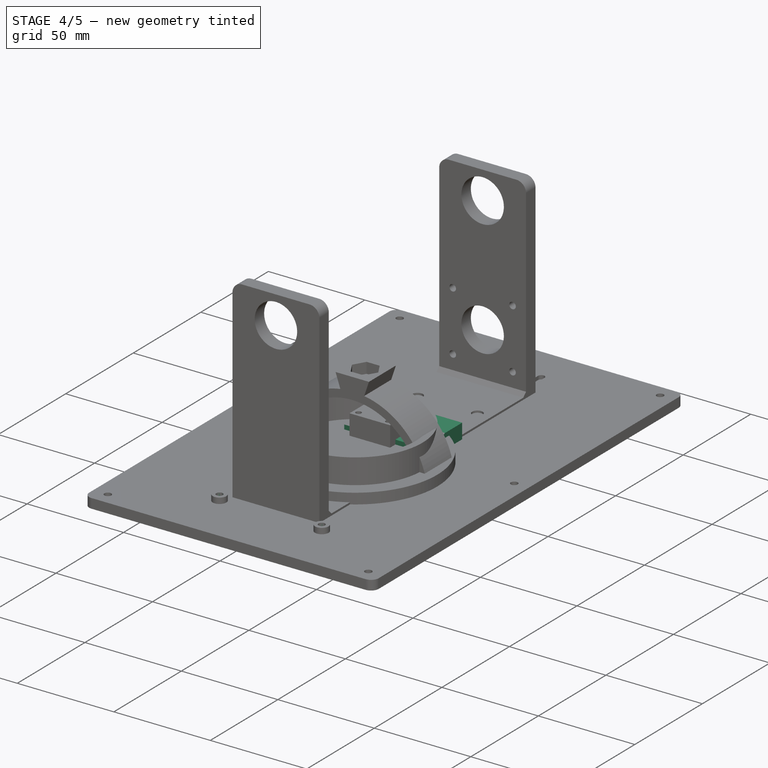
[diagram: stage 4 of 5 — iso view after this stage's code; geometry added in this stage tinted green]
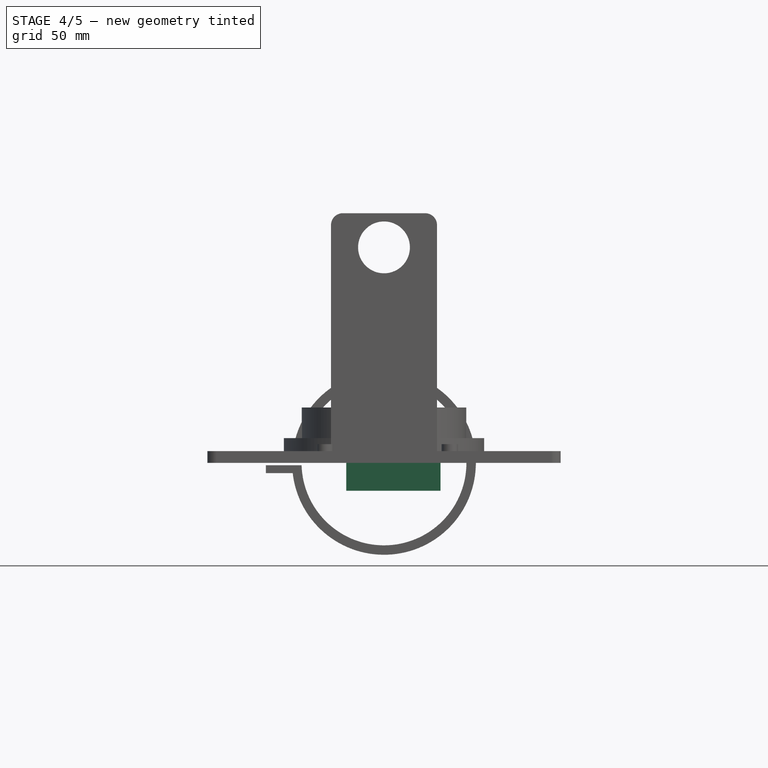
[diagram: stage 4 of 5 — front view after this stage's code; geometry added in this stage tinted green]
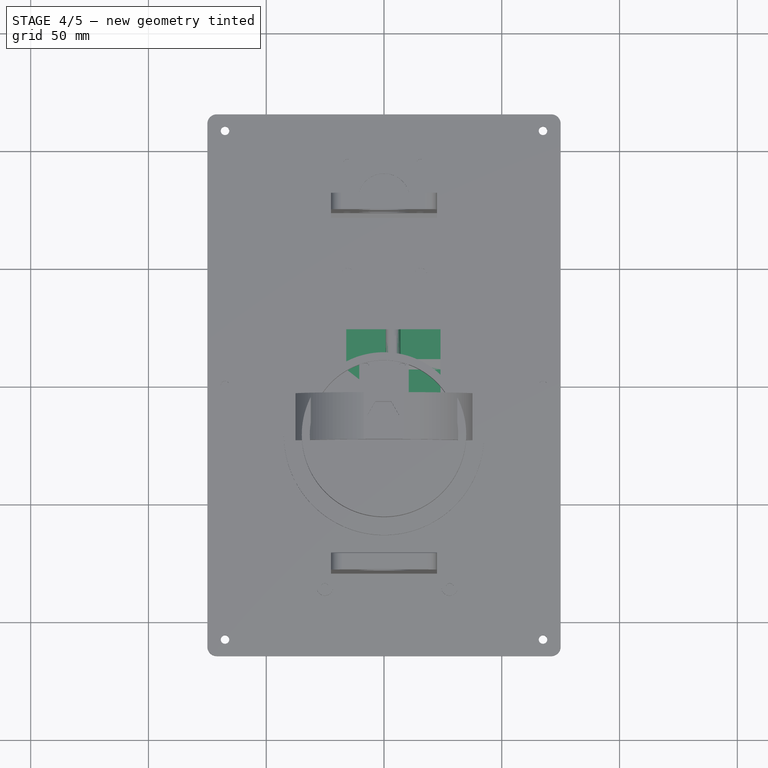
[diagram: stage 4 of 5 — top view after this stage's code; geometry added in this stage tinted green]
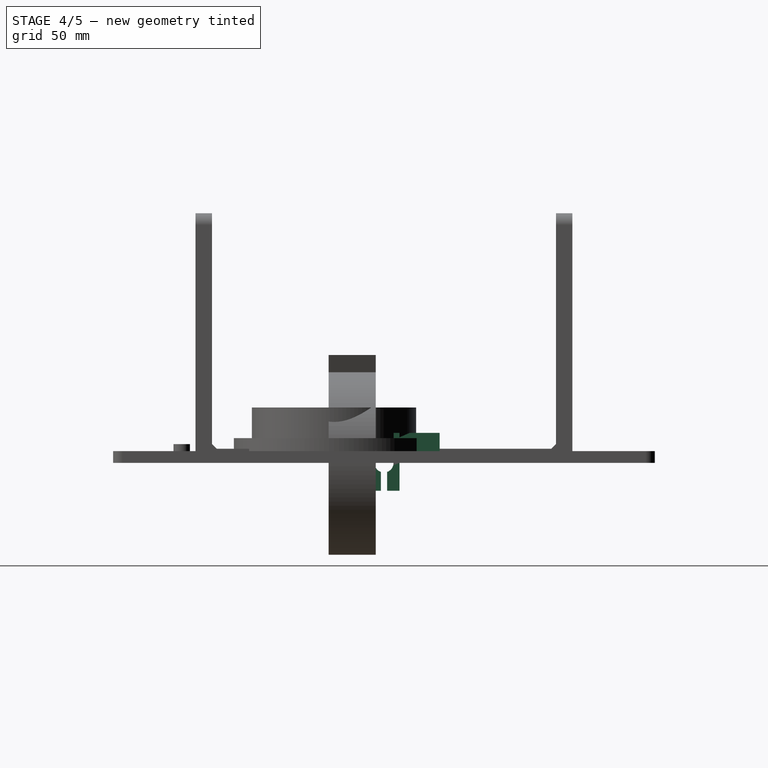
[diagram: stage 4 of 5 — right view after this stage's code; geometry added in this stage tinted green]
FEATURE [PartDesign::Body] PocketBody  label="nema17 gear"
  Group = -> [InvoluteGear001,Pad003,Sketch004,Pad002,Sketch005,Pocket003]
  Origin = -> Origin004
  Placement = pos=(0,75,27) rot=(0,1,0;3.14159rad)
  Tip = -> Pocket003
FEATURE [PartDesign::Plane] DatumPlane001
  AttachmentOffset = pos=(0,0,13.5) rot=(0,0,1;0rad)
  Length = 106.482
  MapMode = 5
  Placement = pos=(0,-13.5,-3e-15) rot=(1,0,0;1.5708rad)
  ResizeMode = 0
  Support = -> [XZ_Plane002]
  Width = 102.172
FEATURE [PartDesign::Plane] DatumPlane
  AttachmentOffset = pos=(0,0,-16) rot=(0,0,1;0rad)
  Length = 60
  MapMode = 5
  Placement = pos=(-16,3.6e-15,-3.6e-15) rot=(0.57735,0.57735,0.57735;2.0944rad)
  ResizeMode = 0
  Support = -> [YZ_Plane006]
  Width = 60
FEATURE [Sketcher::SketchObject] Sketch048
  MapMode = 5
  Placement = pos=(-16,3.6e-15,-3.6e-15) rot=(0.57735,0.57735,0.57735;2.0944rad)
  Support = -> [DatumPlane]
  sketch-geometry (15):
    g0: ArcOfCircle CenterX=0 CenterY=0 CenterZ=0 NormalX=0 NormalY=0 NormalZ=1 AngleXU=0 Radius=4.05 StartAngle=5.29963 EndAngle=9.9984
    g1: LineSegment StartX=-1.34017 StartY=-3.82184 StartZ=0 EndX=-1.34017 EndY=-11.8218 EndZ=0
    g2: LineSegment StartX=-1.34017 StartY=-11.8218 StartZ=0 EndX=-6.59872 EndY=-11.8218 EndZ=0
    g3: LineSegment StartX=1.34017 StartY=-3.82184 StartZ=0 EndX=1.34017 EndY=-11.8218 EndZ=0
    g4: LineSegment StartX=1.34017 StartY=-11.8218 StartZ=0 EndX=6.59872 EndY=-11.8218 EndZ=0
    g5: ArcOfCircle CenterX=0 CenterY=0 CenterZ=0 NormalX=0 NormalY=0 NormalZ=1 AngleXU=0 Radius=4.05 StartAngle=3.71521 EndAngle=4.37512
    g6: ArcOfCircle CenterX=0 CenterY=0 CenterZ=0 NormalX=0 NormalY=0 NormalZ=1 AngleXU=0 Radius=4.05 StartAngle=5.04965 EndAngle=5.29963
    g7: LineSegment StartX=-6.59872 StartY=-3.26644e-06 StartZ=0 EndX=-6.59872 EndY=-11.8218 EndZ=0
    g8: LineSegment [constr] StartX=0 StartY=0 StartZ=0 EndX=0 EndY=10.9551 EndZ=0
    g9: LineSegment [constr] StartX=-1.34017 StartY=-3.82184 StartZ=0 EndX=0 EndY=-3.82184 EndZ=0
    g10: LineSegment [constr] StartX=1.34017 StartY=-3.82184 StartZ=0 EndX=0 EndY=-3.82184 EndZ=0
    g11: LineSegment StartX=6.59872 StartY=0 StartZ=0 EndX=6.59872 EndY=-11.8218 EndZ=0
    g12: LineSegment StartX=-6.59872 StartY=-3.26644e-06 StartZ=0 EndX=-6.59872 EndY=12.7786 EndZ=0
    g13: LineSegment StartX=-6.59872 StartY=12.7786 StartZ=0 EndX=6.59872 EndY=12.7786 EndZ=0
    g14: LineSegment StartX=6.59872 StartY=12.7786 StartZ=0 EndX=6.59872 EndY=0 EndZ=0
  constraints (36):
    c: Radius(g0) = 4.05
    c: Coincident(g1,g2)
    c: Horizontal(g2)
    c: Vertical(g1)
    c: Coincident(g3,g4)
    c: Horizontal(g4)
    c: Vertical(g3)
    c: Equal(g1,g3)
    c: Equal(g2,g4)
    c: Coincident(g0,g-1)
    c: Coincident(g5,g-1)
    c: Coincident(g5,g0)
    c: Coincident(g5,g1)
    c: Coincident(g6,g-1)
    c: Coincident(g6,g0)
    c: Coincident(g3,g6)
    c: Vertical(g7)
    c: Coincident(g8,g-1)
    c: PointOnObject(g8,g-2)
    c: Coincident(g9,g1)
    c: Horizontal(g9)
    c: Coincident(g10,g3)
    c: Coincident(g10,g9)
    c: Horizontal(g10)
    c: Equal(g9,g10)
    c: Coincident(g7,g2)
    c: Coincident(g11,g4)
    c: Vertical(g11)
    c: DistanceY(g1,g1) = 8
    c: Coincident(g7,g12)
    c: Vertical(g12)
    c: Coincident(g12,g13)
    c: Horizontal(g13)
    c: Coincident(g14,g13)
    c: Coincident(g14,g11)
    c: Vertical(g14)
FEATURE [PartDesign::Pad] Pad026
  AllowMultiFace = false
  Length = 40
  Length2 = 100
  Placement = pos=(-16,4e-15,-4e-15) rot=(0.57735,0.57735,0.57735;2.0944rad)
  Profile = -> Sketch048
  Type = 0
FEATURE [Sketcher::SketchObject] Sketch076
  ExternalGeometry = -> [Pad026]
  MapMode = 5
  Placement = pos=(-16,6.59872,-1.8e-15) rot=(-0.57735,-0.57735,-0.57735;2.0944rad)
  Support = -> [Pad026]
  sketch-geometry (4):
    g0: LineSegment StartX=0.031989 StartY=39.9712 StartZ=0 EndX=12.7786 EndY=39.9712 EndZ=0
    g1: LineSegment StartX=12.7786 StartY=39.9712 StartZ=0 EndX=12.7786 EndY=0 EndZ=0
    g2: LineSegment StartX=12.7786 StartY=0 StartZ=0 EndX=0.031989 EndY=0 EndZ=0
    g3: LineSegment StartX=0.031989 StartY=0 StartZ=0 EndX=0.031989 EndY=39.9712 EndZ=0
  constraints (9):
    c: Coincident(g0,g1)
    c: Coincident(g1,g2)
    c: Coincident(g2,g3)
    c: Coincident(g3,g0)
    c: Horizontal(g0)
    c: Horizontal(g2)
    c: Vertical(g1)
    c: Vertical(g3)
    c: Coincident(g1,g-3)
FEATURE [PartDesign::Pad] Pad027
  AllowMultiFace = false
  BaseFeature = -> Pad026
  Length = 17
  Length2 = 100
  Placement = pos=(-16,4e-15,-4e-15) rot=(0.57735,0.57735,0.57735;2.0944rad)
  Profile = -> Sketch076
  Type = 0
FEATURE [Sketcher::SketchObject] Sketch075
  ExternalGeometry = -> [Pad026]
  MapMode = 5
  Placement = pos=(23.9712,1.28e-14,-4e-15) rot=(0.57735,0.57735,0.57735;2.0944rad)
  Support = -> [Pad027]
  sketch-geometry (4):
    g0: LineSegment StartX=12.7786 StartY=26.478 StartZ=0 EndX=6.49846 EndY=29.213 EndZ=0
    g1: LineSegment StartX=6.49846 StartY=29.213 StartZ=0 EndX=6.49846 EndY=10.8263 EndZ=0
    g2: LineSegment StartX=6.49846 StartY=10.8263 StartZ=0 EndX=12.7786 EndY=13.6106 EndZ=0
    g3: LineSegment StartX=12.7786 StartY=13.6106 StartZ=0 EndX=12.7786 EndY=26.478 EndZ=0
  constraints (7):
    c: PointOnObject(g0,g-3)
    c: Coincident(g0,g1)
    c: Vertical(g1)
    c: Coincident(g1,g2)
    c: PointOnObject(g2,g-3)
    c: Coincident(g3,g2)
    c: Coincident(g3,g0)
FEATURE [PartDesign::Pocket] Pocket041
  AllowMultiFace = false
  BaseFeature = -> Pad027
  Length = 20.1
  Length2 = 100
  Placement = pos=(-16,4e-15,-4e-15) rot=(0.57735,0.57735,0.57735;2.0944rad)
  Profile = -> Sketch075
  Type = 0
FEATURE [Sketcher::SketchObject] Sketch077
  ExternalGeometry = -> [Pad026]
  MapMode = 5
  Placement = pos=(-16,4e-15,-4e-15) rot=(0.57735,0.57735,-0.57735;4.18879rad)
  Support = -> [Pocket041]
  sketch-geometry (3):
    g0: LineSegment [constr] StartX=-11.0987 StartY=7.32184 StartZ=0 EndX=-11.0987 EndY=16.3218 EndZ=0
    g1: Circle CenterX=-11.0987 CenterY=16.3218 CenterZ=0 NormalX=0 NormalY=0 NormalZ=1 AngleXU=0 Radius=1.7
    g2: Circle CenterX=-11.0987 CenterY=7.32184 CenterZ=0 NormalX=0 NormalY=0 NormalZ=1 AngleXU=0 Radius=1.7
  constraints (8):
    c: Vertical(g0)
    c: DistanceX(g0,g-3) = 4.5
    c: DistanceY(g0,g-3) = 4.5
    c: DistanceY(g-3,g0) = 4.5
    c: Coincident(g1,g0)
    c: Coincident(g2,g0)
    c: Radius(g2) = 1.7
    c: Equal(g2,g1)
FEATURE [PartDesign::Pocket] Pocket042
  AllowMultiFace = false
  BaseFeature = -> Pocket041
  Length = 20
  Length2 = 100
  Placement = pos=(-16,4e-15,-4e-15) rot=(0.57735,0.57735,0.57735;2.0944rad)
  Profile = -> Sketch077
  Type = 0
FEATURE [Sketcher::SketchObject] Sketch078
  ExternalGeometry = -> [Pocket042]
  MapMode = 5
  Placement = pos=(-16,23.5987,-4e-15) rot=(0.57735,0.57735,0.57735;4.18879rad)
  Support = -> [Pocket042]
  sketch-geometry (2):
    g0: Circle CenterX=13.5155 CenterY=19.8581 CenterZ=0 NormalX=0 NormalY=0 NormalZ=1 AngleXU=0 Radius=3.25
    g1: LineSegment [constr] StartX=13.5155 StartY=19.8581 StartZ=0 EndX=13.5155 EndY=26.7123 EndZ=0
  constraints (3):
    c: Radius(g0) = 3.25
    c: Coincident(g1,g0)
    c: Vertical(g1)
FEATURE [PartDesign::Pocket] Pocket043
  AllowMultiFace = false
  BaseFeature = -> Pocket042
  Length = 30
  Length2 = 100
  Placement = pos=(-16,4e-15,-4e-15) rot=(0.57735,0.57735,0.57735;2.0944rad)
  Profile = -> Sketch078
  Type = 0
FEATURE [Sketcher::SketchObject] Sketch084
  ExternalGeometry = -> [Pad031]
  MapMode = 5
  Placement = pos=(0,0,8) rot=(0,0,1;0rad)
  Support = -> [Pad031]
  sketch-geometry (4):
    g0: Circle CenterX=-25.1108 CenterY=-22.8789 CenterZ=0 NormalX=0 NormalY=0 NormalZ=1 AngleXU=0 Radius=1.7
    g1: Circle CenterX=27.8892 CenterY=-22.8789 CenterZ=0 NormalX=0 NormalY=0 NormalZ=1 AngleXU=0 Radius=1.7
    g2: Circle CenterX=27.8892 CenterY=-85.8789 CenterZ=0 NormalX=0 NormalY=0 NormalZ=1 AngleXU=0 Radius=1.7
    g3: Circle CenterX=-25.1108 CenterY=-85.8789 CenterZ=0 NormalX=0 NormalY=0 NormalZ=1 AngleXU=0 Radius=1.7
  constraints (8):
    c: Coincident(g0,g-3)
    c: Coincident(g1,g-4)
    c: Coincident(g2,g-5)
    c: Coincident(g3,g-6)
    c: Radius(g0) = 1.7
    c: Equal(g0,g1)
    c: Equal(g0,g3)
    c: Equal(g0,g2)
FEATURE [PartDesign::Pocket] Pocket045
  BaseFeature = -> Pad031
  Length = 12.5
  Length2 = 100
  Profile = -> Sketch084
  Type = 0
FEATURE [PartDesign::Fillet] Fillet002
  Base = -> Pocket045 [Edge8,Edge5,Edge2,Edge1]
  BaseFeature = -> Pocket045
  Radius = 3
  SupportTransform = false
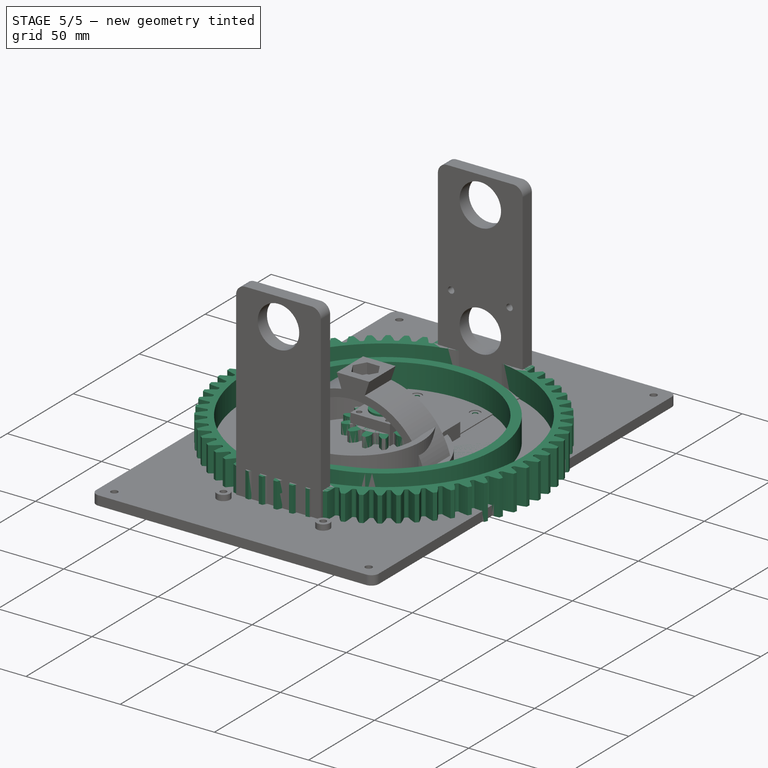
[diagram: stage 5 of 5 — iso view after this stage's code; geometry added in this stage tinted green]
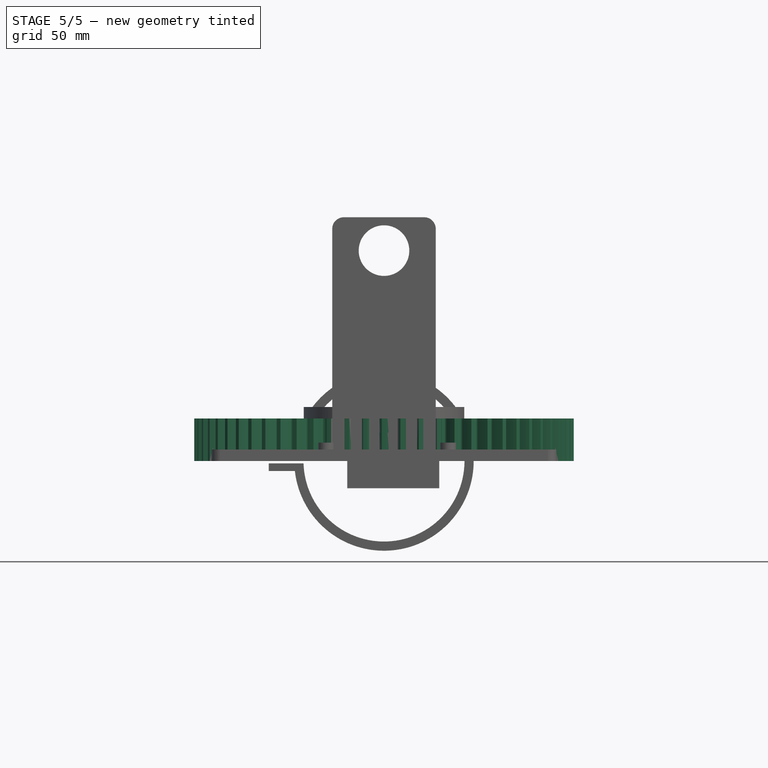
[diagram: stage 5 of 5 — front view after this stage's code; geometry added in this stage tinted green]
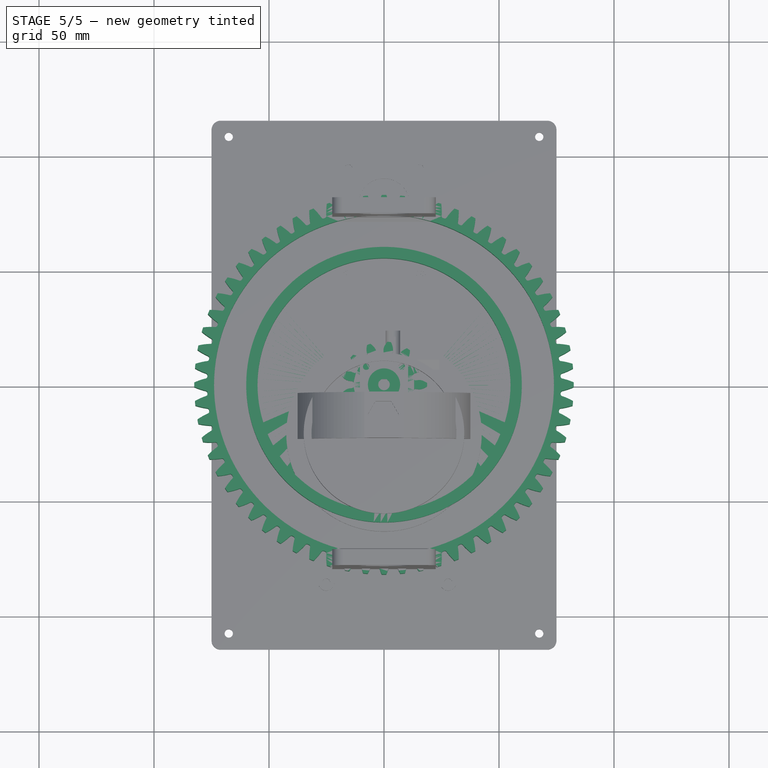
[diagram: stage 5 of 5 — top view after this stage's code; geometry added in this stage tinted green]
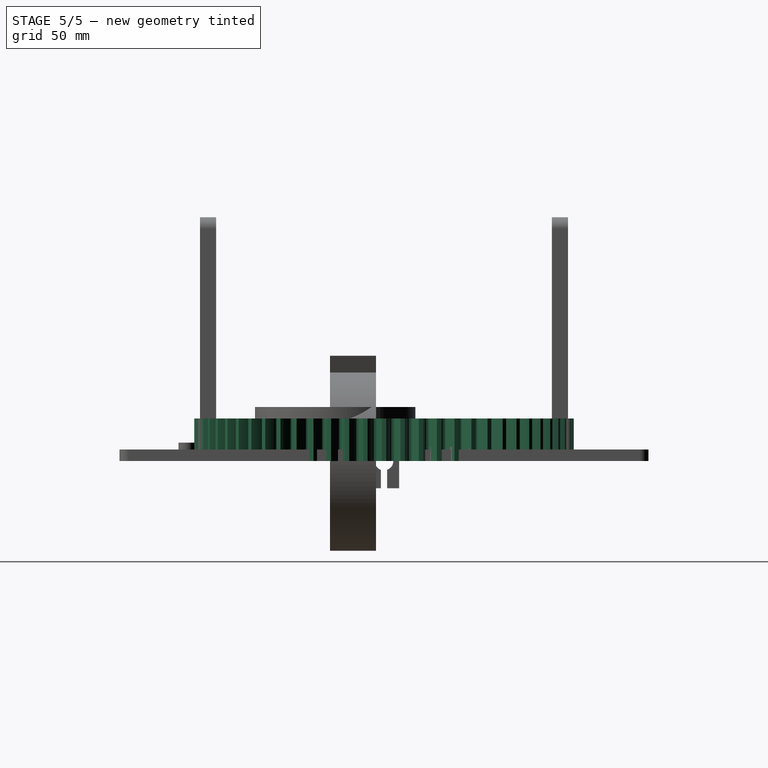
[diagram: stage 5 of 5 — right view after this stage's code; geometry added in this stage tinted green]
FEATURE [Part::Part2DObjectPython] InvoluteGear  # Draft 2D object (typed FeaturePython)
  ExternalGear = true
  HighPrecision = true
  Modules = 2.5
  NumberOfTeeth = 64
  PressureAngle = 20
FEATURE [PartDesign::Pad] Pad
  Length = 18.5
  Length2 = 100
  Profile = -> InvoluteGear
  Type = 0
FEATURE [Sketcher::SketchObject] Sketch
  MapMode = 5
  Placement = pos=(0,0,18.5) rot=(0,0,1;0rad)
  Support = -> [Pad]
  sketch-geometry (1):
    g0: Circle CenterX=0 CenterY=0 CenterZ=0 NormalX=0 NormalY=0 NormalZ=1 AngleXU=0 Radius=55
  constraints (2):
    c: Coincident(g0,g-1)
    c: Radius(g0) = 55
FEATURE [PartDesign::Pocket] Pocket
  BaseFeature = -> Pad
  Length = 13
  Length2 = 100
  Profile = -> Sketch
  Type = 0
FEATURE [Sketcher::SketchObject] Sketch001
  MapMode = 5
  Placement = pos=(0,0,5.5) rot=(0,0,1;0rad)
  Support = -> [Pocket]
  sketch-geometry (10):
    g0: Circle CenterX=-15.5 CenterY=0 CenterZ=0 NormalX=0 NormalY=0 NormalZ=1 AngleXU=0 Radius=1.4
    g1: Circle CenterX=15.5 CenterY=0 CenterZ=0 NormalX=0 NormalY=0 NormalZ=1 AngleXU=0 Radius=1.4
    g2: LineSegment [constr] StartX=-15.5 StartY=47 StartZ=0 EndX=15.5 EndY=47 EndZ=0
    g3: LineSegment [constr] StartX=15.5 StartY=47 StartZ=0 EndX=15.5 EndY=-47 EndZ=0
    g4: LineSegment [constr] StartX=15.5 StartY=-47 StartZ=0 EndX=-15.5 EndY=-47 EndZ=0
    g5: LineSegment [constr] StartX=-15.5 StartY=-47 StartZ=0 EndX=-15.5 EndY=47 EndZ=0
    g6: Circle CenterX=-15.5 CenterY=47 CenterZ=0 NormalX=0 NormalY=0 NormalZ=1 AngleXU=0 Radius=1.4
    g7: Circle CenterX=15.5 CenterY=47 CenterZ=0 NormalX=0 NormalY=0 NormalZ=1 AngleXU=0 Radius=1.4
    g8: Circle CenterX=15.5 CenterY=-47 CenterZ=0 NormalX=0 NormalY=0 NormalZ=1 AngleXU=0 Radius=1.4
    g9: Circle CenterX=-15.5 CenterY=-47 CenterZ=0 NormalX=0 NormalY=0 NormalZ=1 AngleXU=0 Radius=1.4
  constraints (24):
    c: Equal(g0,g1)
    c: Coincident(g2,g3)
    c: Coincident(g3,g4)
    c: Coincident(g4,g5)
    c: Coincident(g5,g2)
    c: Horizontal(g2)
    c: Horizontal(g4)
    c: Vertical(g3)
    c: Vertical(g5)
    c: Symmetric(g2,g3,g-1)
    c: DistanceX(g2,g2) = 31
    c: DistanceY(g5,g5) = 94
    c: Coincident(g6,g2)
    c: Coincident(g7,g2)
    c: Coincident(g8,g3)
    c: Coincident(g9,g4)
    c: Radius(g9) = 1.4
    c: Equal(g9,g8)
    c: Equal(g9,g7)
    c: Equal(g9,g6)
    c: PointOnObject(g0,g5)
    c: PointOnObject(g0,g-1)
    c: PointOnObject(g1,g-1)
    c: PointOnObject(g1,g3)
FEATURE [PartDesign::Pocket] Pocket001
  BaseFeature = -> Pocket
  Length = 5.5
  Length2 = 100
  Profile = -> Sketch001
  Type = 0
FEATURE [Sketcher::SketchObject] Sketch002
  MapMode = 5
  Placement = pos=(0,0,18.5) rot=(0,0,1;0rad)
  Support = -> [Pocket001]
  sketch-geometry (2):
    g0: Circle CenterX=0 CenterY=0 CenterZ=0 NormalX=0 NormalY=0 NormalZ=1 AngleXU=0 Radius=59.9128
    g1: Circle CenterX=0 CenterY=0 CenterZ=0 NormalX=0 NormalY=0 NormalZ=1 AngleXU=0 Radius=73.9039
  constraints (2):
    c: Coincident(g0,g-1)
    c: Coincident(g1,g0)
FEATURE [PartDesign::Pocket] Pocket002
  BaseFeature = -> Pocket001
  Length = 13
  Length2 = 100
  Profile = -> Sketch002
  Type = 0
FEATURE [Part::Part2DObjectPython] InvoluteGear001  # Draft 2D object (typed FeaturePython)
  ExternalGear = true
  HighPrecision = true
  MapMode = 5
  Modules = 2.5
  NumberOfTeeth = 13
  PressureAngle = 20
FEATURE [PartDesign::Pad] Pad003
  AllowMultiFace = false
  Length = 16
  Length2 = 100
  Profile = -> InvoluteGear001
  Type = 0
FEATURE [Sketcher::SketchObject] Sketch004
  MapMode = 5
  Placement = pos=(0,0,16) rot=(0,0,1;0rad)
  Support = -> [Pad003]
  sketch-geometry (1):
    g0: Circle CenterX=0 CenterY=0 CenterZ=0 NormalX=0 NormalY=0 NormalZ=1 AngleXU=0 Radius=7
  constraints (2):
    c: Coincident(g0,g-1)
    c: Radius(g0) = 7
FEATURE [PartDesign::Pad] Pad002
  AllowMultiFace = false
  BaseFeature = -> Pad003
  Length = 6
  Length2 = 100
  Profile = -> Sketch004
  Type = 0
FEATURE [Sketcher::SketchObject] Sketch005
  MapMode = 5
  Placement = pos=(0,0,22) rot=(0,0,1;0rad)
  Support = -> [Pad002]
  sketch-geometry (2):
    g0: ArcOfCircle CenterX=0 CenterY=0 CenterZ=0 NormalX=0 NormalY=0 NormalZ=1 AngleXU=0 Radius=2.5 StartAngle=1.91896 EndAngle=7.50582
    g1: LineSegment StartX=-0.852936 StartY=2.35 StartZ=0 EndX=0.852936 EndY=2.35 EndZ=0
  constraints (6):
    c: Coincident(g0,g-1)
    c: Coincident(g1,g0)
    c: Coincident(g1,g0)
    c: Horizontal(g1)
    c: DistanceY(g-1,g0) = 2.35
    c: Radius(g0) = 2.5
FEATURE [PartDesign::Pocket] Pocket003
  AllowMultiFace = false
  BaseFeature = -> Pad002
  Length = 25
  Length2 = 100
  Profile = -> Sketch005
  Type = 0
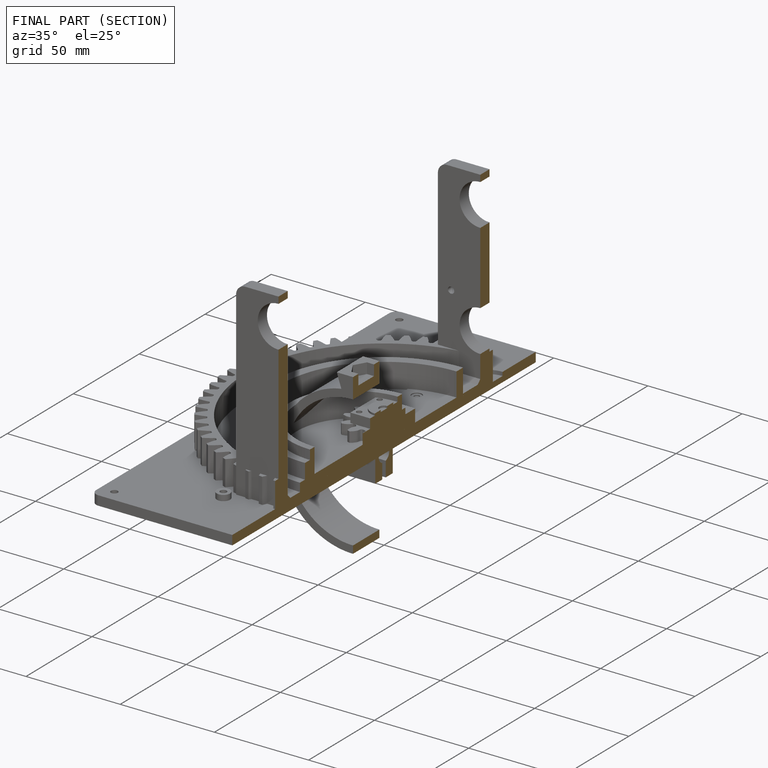
[diagram: finished part — half-section view (interior)]
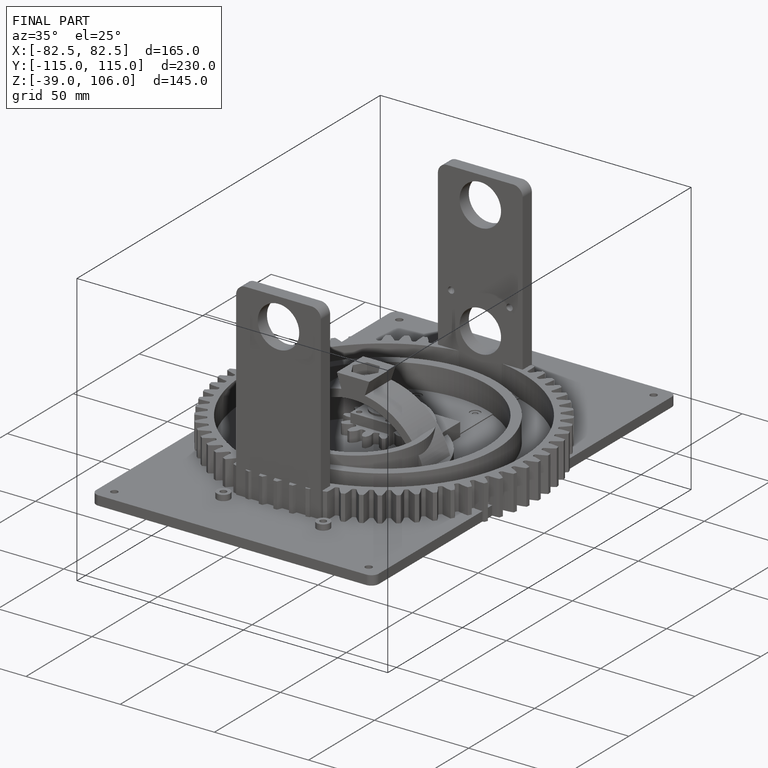
[diagram: finished part — iso view with bounding-box wireframe]
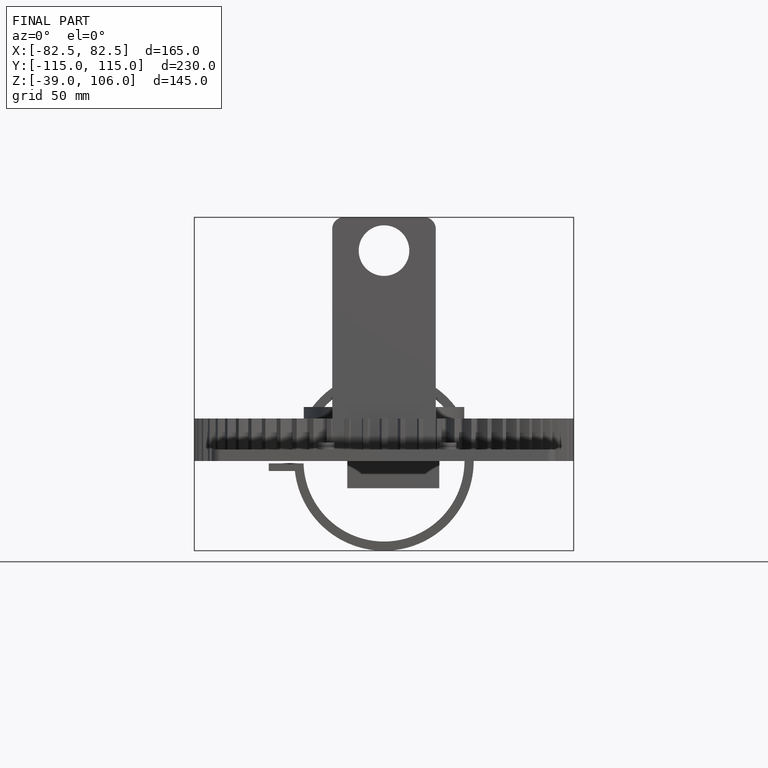
[diagram: finished part — front view with bounding-box wireframe]
